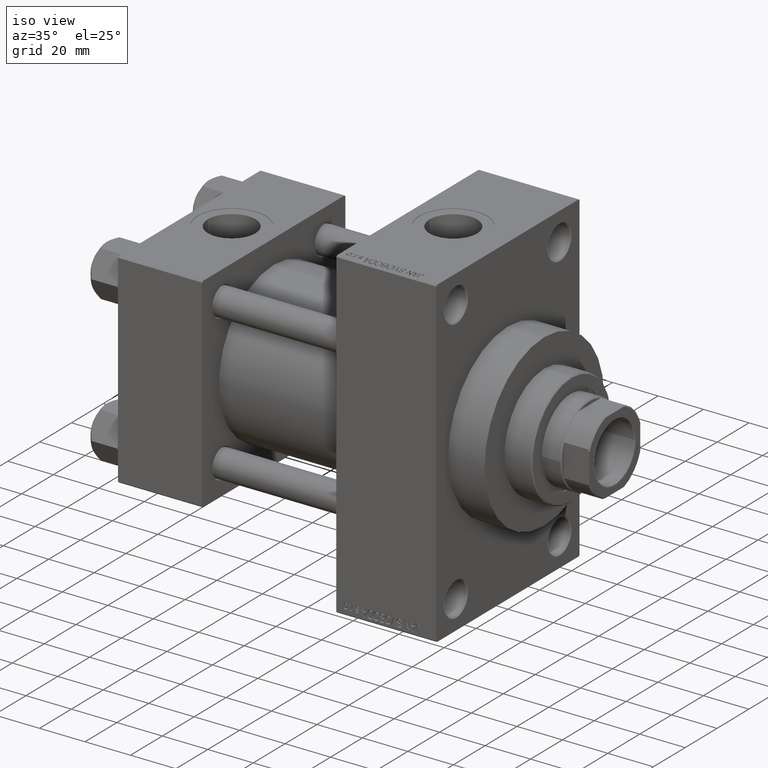
[diagram: clean part render]
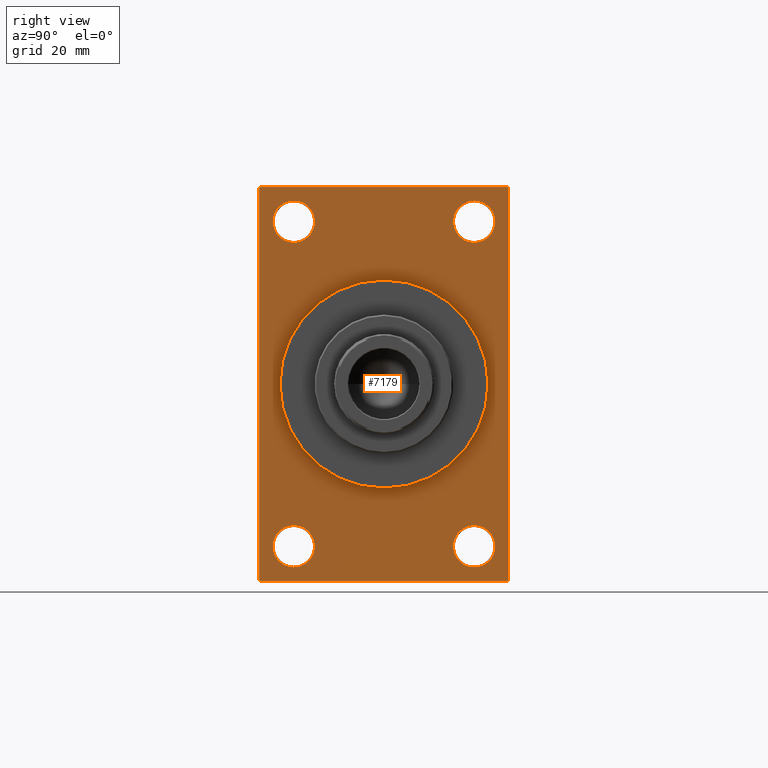
[diagram: tour spotlight — one face highlighted and labeled with its STEP entity id]
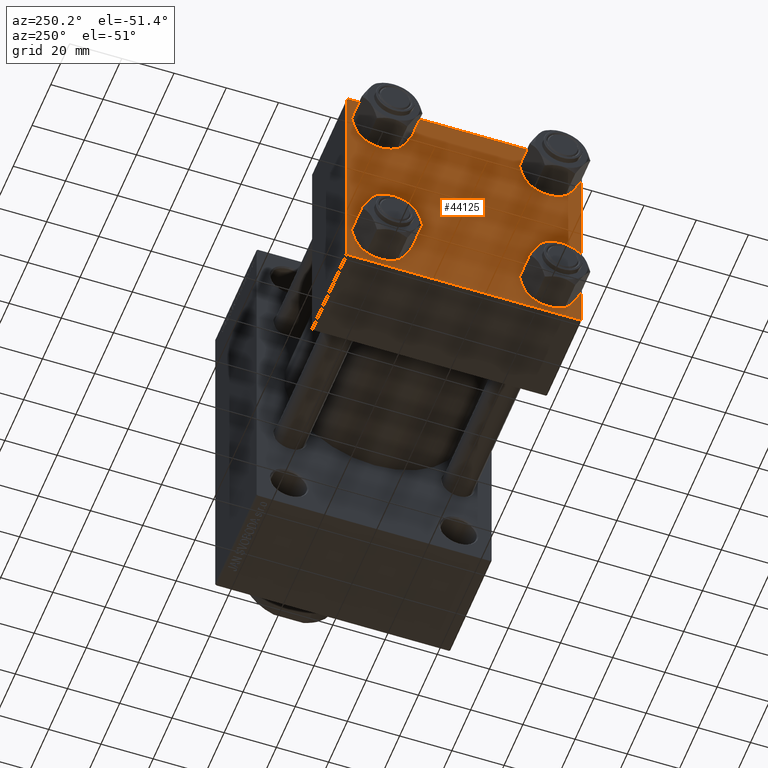
[diagram: tour spotlight — one face highlighted and labeled with its STEP entity id]
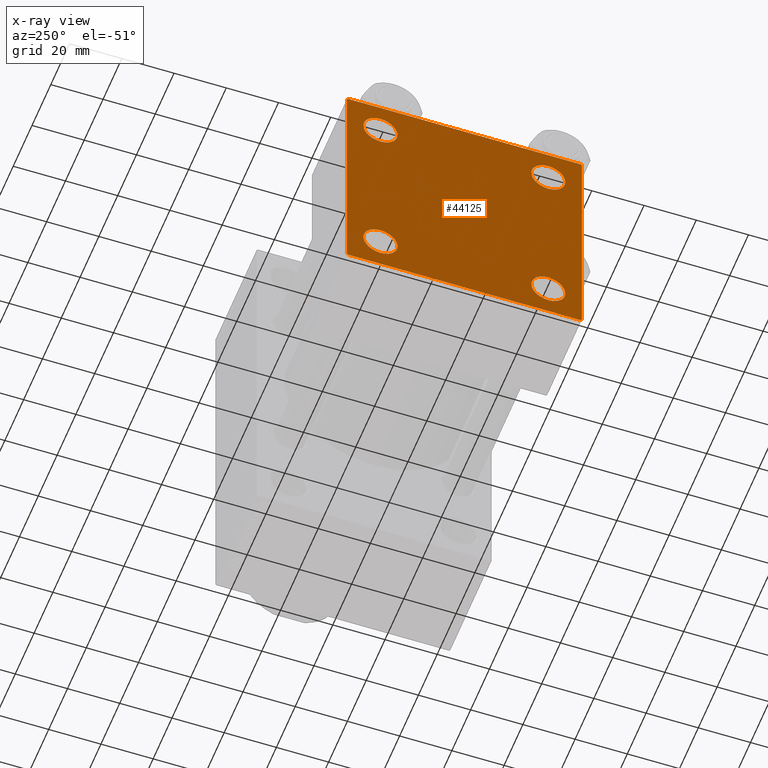
[diagram: x-ray of the same camera — body ghosted, this tour face saturated]
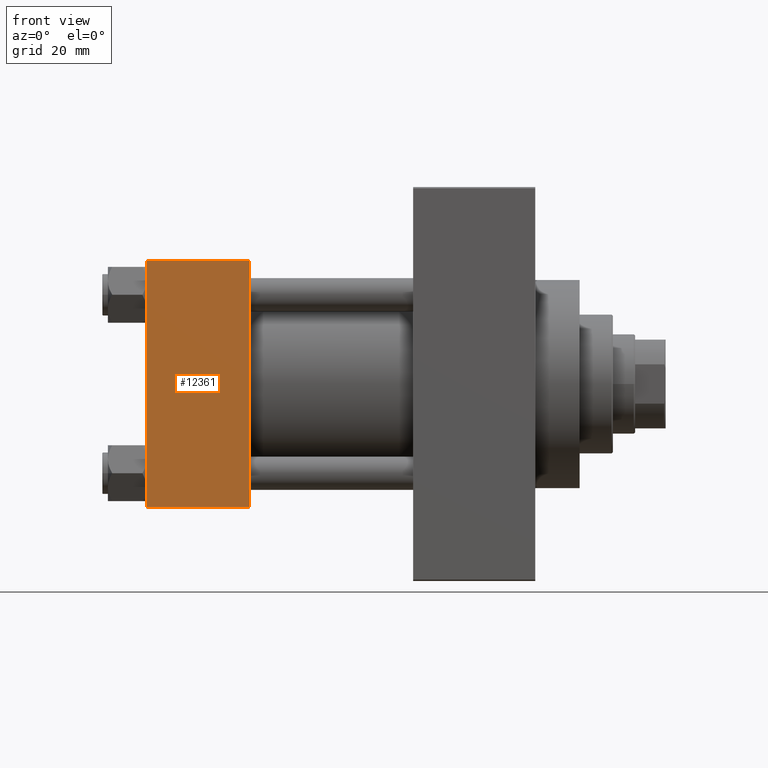
[diagram: tour spotlight — one face highlighted and labeled with its STEP entity id]
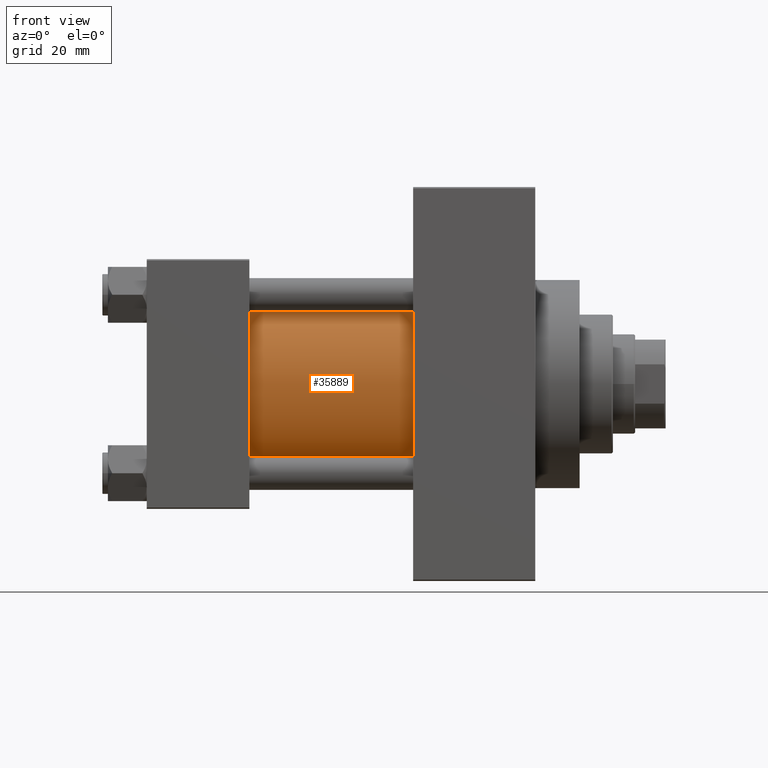
[diagram: tour spotlight — one face highlighted and labeled with its STEP entity id]
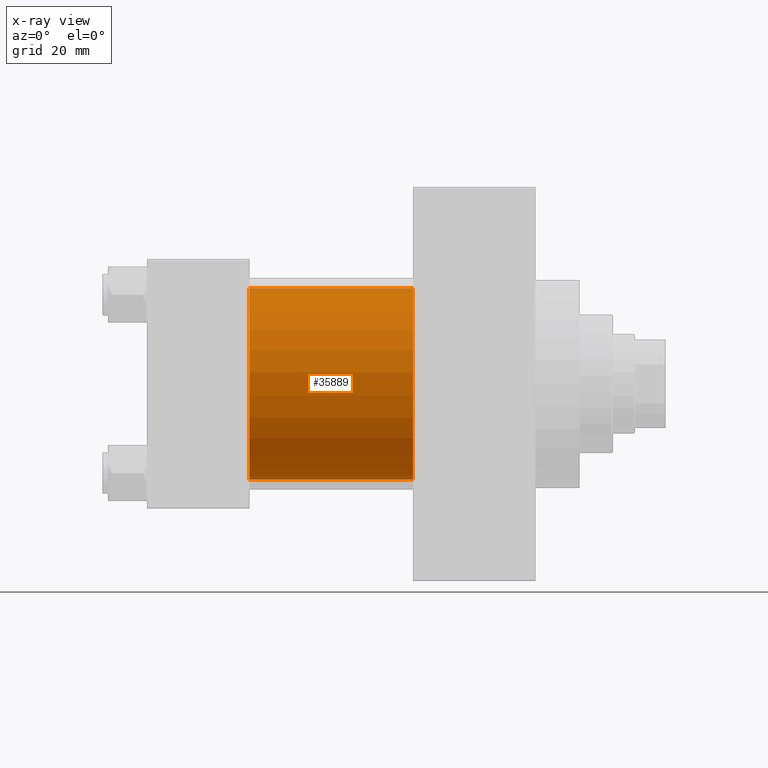
[diagram: x-ray of the same camera — body ghosted, this tour face saturated]
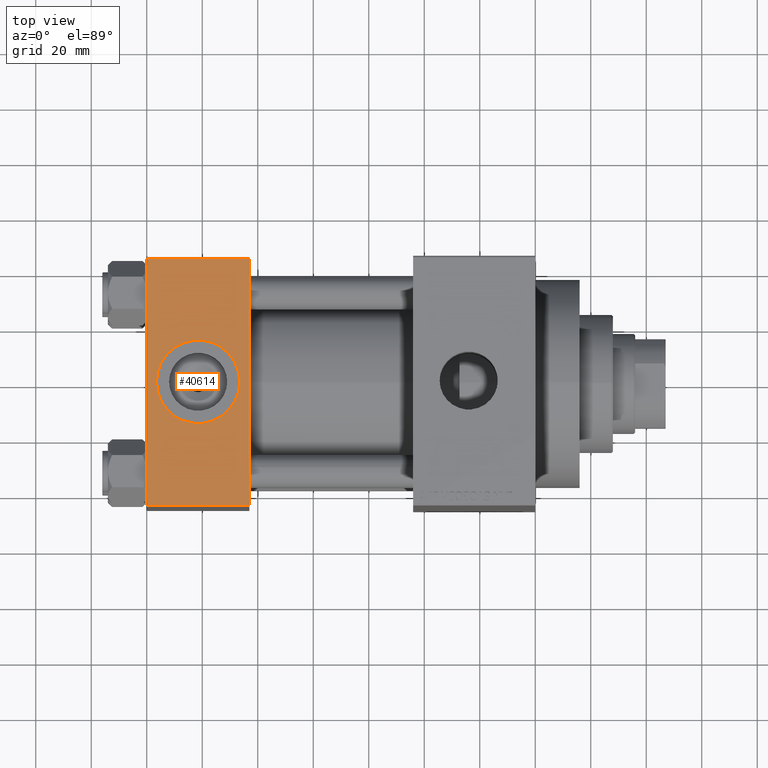
[diagram: tour spotlight — one face highlighted and labeled with its STEP entity id]
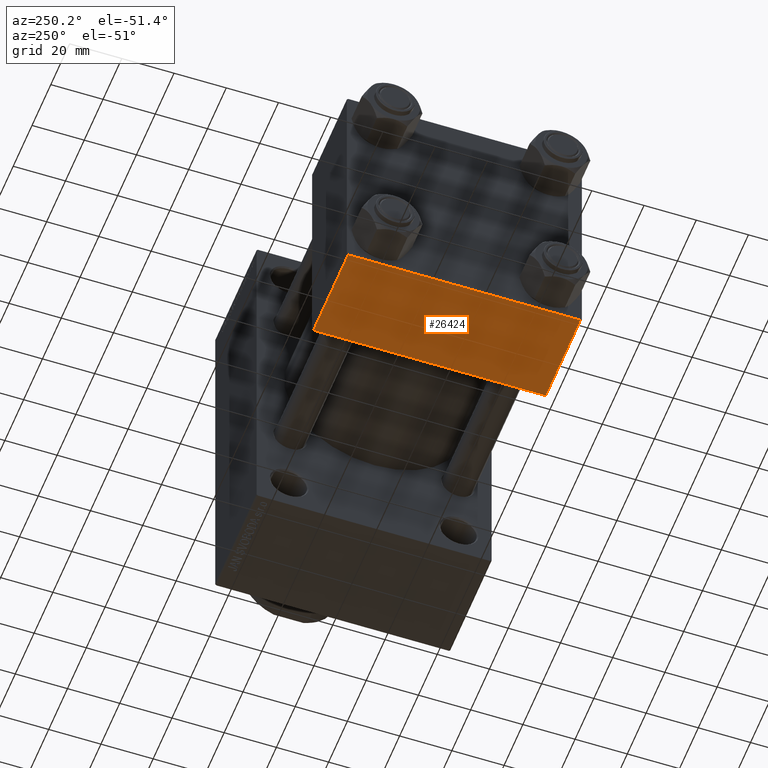
[diagram: tour spotlight — one face highlighted and labeled with its STEP entity id]
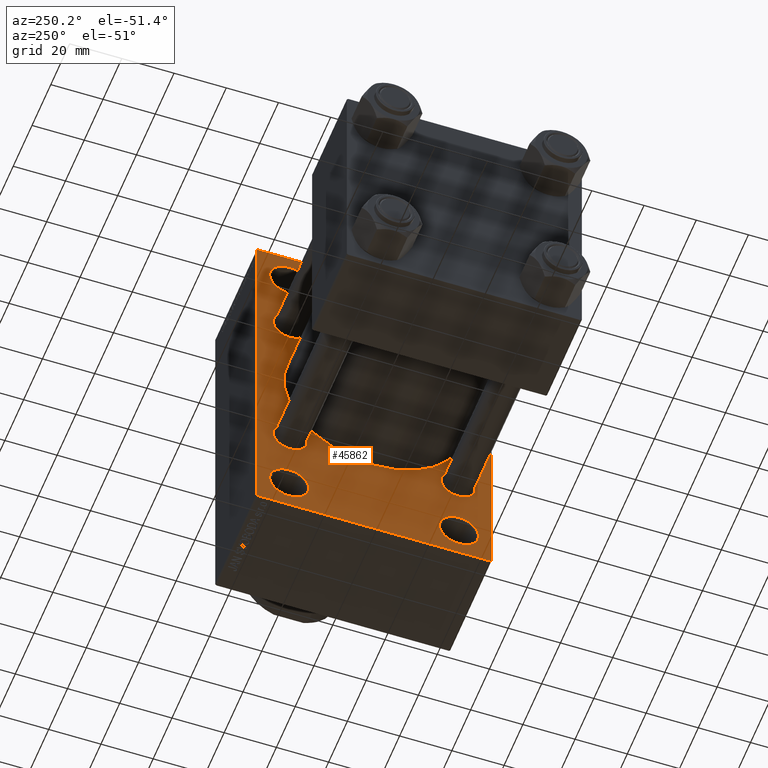
[diagram: tour spotlight — one face highlighted and labeled with its STEP entity id]
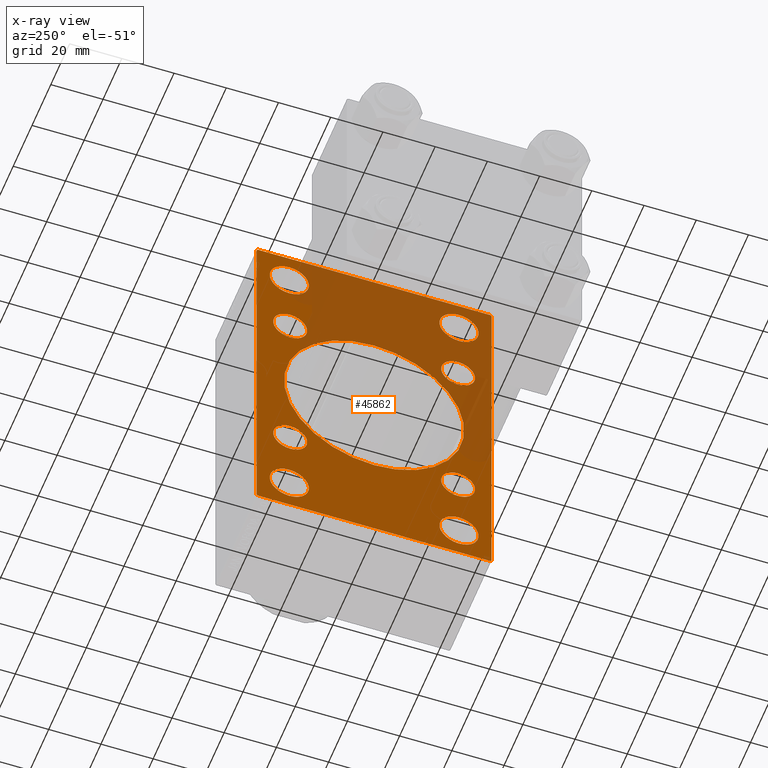
[diagram: x-ray of the same camera — body ghosted, this tour face saturated]
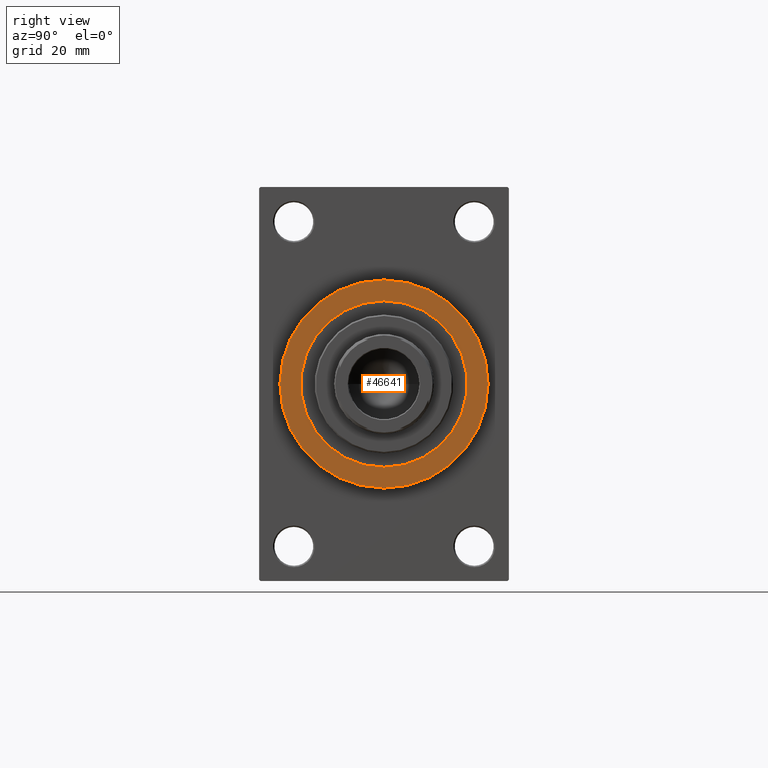
[diagram: tour spotlight — one face highlighted and labeled with its STEP entity id]
A machine part: a face-by-face anatomy tour. The part has 1103 B-rep faces; the first image is the clean iso view, then the 8 largest visible faces are spotlighted one at a time (largest first), each with its STEP entity span.

Face 1 — right view, entity #7179. In plain terms, the highlighted planar face has unit normal (-1, 0, 0).
Definition (entity closure, byte-faithful):
#150 = AXIS2_PLACEMENT_3D ( 'NONE', #31785, #9809, #24403 ) ;
#200 = DIRECTION ( 'NONE',  ( 0.000000000000000000, 0.000000000000000000, -1.000000000000000000 ) ) ;
#504 = EDGE_CURVE ( 'NONE', #42250, #14946, #43562, .T. ) ;
#590 = DIRECTION ( 'NONE',  ( 0.000000000000000000, 0.000000000000000000, -1.000000000000000000 ) ) ;
#1022 = DIRECTION ( 'NONE',  ( 0.000000000000000000, 0.000000000000000000, 1.000000000000000000 ) ) ;
#2014 = CARTESIAN_POINT ( 'NONE',  ( 140.0000000000000000, -32.50000000000000000, -66.00000000000001421 ) ) ;
#2403 = VECTOR ( 'NONE', #12696, 1000.000000000000000 ) ;
#2752 = FACE_BOUND ( 'NONE', #17163, .T. ) ;
#2886 = AXIS2_PLACEMENT_3D ( 'NONE', #33824, #14961, #19021 ) ;
#2984 = AXIS2_PLACEMENT_3D ( 'NONE', #11325, #25898, #590 ) ;
#3574 = CARTESIAN_POINT ( 'NONE',  ( 140.0000000000000000, -32.50000000000000000, 58.50000000000000711 ) ) ;
#4640 = ORIENTED_EDGE ( 'NONE', *, *, #32206, .F. ) ;
#5063 = CARTESIAN_POINT ( 'NONE',  ( 140.0000000000000000, -32.50000000000000000, 51.00000000000007105 ) ) ;
#5491 = CIRCLE ( 'NONE', #150, 7.499999999999936939 ) ;
#5513 = VERTEX_POINT ( 'NONE', #5063 ) ;
#5785 = ORIENTED_EDGE ( 'NONE', *, *, #18177, .F. ) ;
#5873 = VECTOR ( 'NONE', #18076, 1000.000000000000000 ) ;
#6562 = VERTEX_POINT ( 'NONE', #28187 ) ;
#6690 = EDGE_CURVE ( 'NONE', #26276, #33516, #23202, .T. ) ;
#6734 = EDGE_CURVE ( 'NONE', #35323, #5513, #41385, .T. ) ;
#6785 = CIRCLE ( 'NONE', #2984, 37.50000000000000711 ) ;
#6861 = CARTESIAN_POINT ( 'NONE',  ( 140.0000000000000000, 45.00000000000001421, -70.50000000000001421 ) ) ;
#7106 = VECTOR ( 'NONE', #30581, 1000.000000000000114 ) ;
#7179 = ADVANCED_FACE ( 'NONE', ( #39055, #46911, #32120, #13268, #2752, #17322 ), #46678, .F. ) ;
#7412 = ORIENTED_EDGE ( 'NONE', *, *, #33374, .T. ) ;
#8343 = CARTESIAN_POINT ( 'NONE',  ( 140.0000000000000000, -32.50000000000000000, -50.99999999999995737 ) ) ;
#8572 = VECTOR ( 'NONE', #200, 1000.000000000000000 ) ;
#9085 = AXIS2_PLACEMENT_3D ( 'NONE', #45186, #23936, #1022 ) ;
#9270 = CARTESIAN_POINT ( 'NONE',  ( 140.0000000000000000, -32.50000000000000000, -58.49999999999999289 ) ) ;
#9435 = EDGE_LOOP ( 'NONE', ( #41991, #31627, #39364, #39933, #5785, #15602, #46094, #15743 ) ) ;
#9521 = ORIENTED_EDGE ( 'NONE', *, *, #20692, .T. ) ;
#9594 = EDGE_CURVE ( 'NONE', #30955, #43841, #19616, .T. ) ;
#9809 = DIRECTION ( 'NONE',  ( -1.000000000000000000, 0.000000000000000000, -0.000000000000000000 ) ) ;
#10556 = VERTEX_POINT ( 'NONE', #19563 ) ;
#10687 = CARTESIAN_POINT ( 'NONE',  ( 140.0000000000000000, -44.99999999999997158, 70.49999999999998579 ) ) ;
#10968 = AXIS2_PLACEMENT_3D ( 'NONE', #31885, #14203, #46451 ) ;
#10975 = DIRECTION ( 'NONE',  ( 0.000000000000000000, 0.000000000000000000, 1.000000000000000000 ) ) ;
#11203 = EDGE_CURVE ( 'NONE', #26493, #22361, #46830, .T. ) ;
#11325 = CARTESIAN_POINT ( 'NONE',  ( 140.0000000000000000, 0.000000000000000000, 0.000000000000000000 ) ) ;
#11661 = EDGE_LOOP ( 'NONE', ( #27119, #9521 ) ) ;
#12231 = VERTEX_POINT ( 'NONE', #31089 ) ;
#12696 = DIRECTION ( 'NONE',  ( 0.000000000000000000, -1.000000000000000000, -1.541976423090495387E-16 ) ) ;
#13268 = FACE_BOUND ( 'NONE', #11661, .T. ) ;
#13706 = DIRECTION ( 'NONE',  ( -0.000000000000000000, 0.7071067811865574537, 0.7071067811865376918 ) ) ;
#13746 = CARTESIAN_POINT ( 'NONE',  ( 140.0000000000000000, 4.592425496802575156E-15, -37.50000000000000711 ) ) ;
#14203 = DIRECTION ( 'NONE',  ( -1.000000000000000000, 0.000000000000000000, -0.000000000000000000 ) ) ;
#14515 = LINE ( 'NONE', #17879, #8572 ) ;
#14621 = ORIENTED_EDGE ( 'NONE', *, *, #11203, .T. ) ;
#14759 = DIRECTION ( 'NONE',  ( -0.000000000000000000, -0.7071067811865426878, -0.7071067811865524577 ) ) ;
#14946 = VERTEX_POINT ( 'NONE', #13746 ) ;
#14961 = DIRECTION ( 'NONE',  ( -1.000000000000000000, 0.000000000000000000, -0.000000000000000000 ) ) ;
#15253 = EDGE_CURVE ( 'NONE', #30236, #6562, #31612, .T. ) ;
#15426 = DIRECTION ( 'NONE',  ( -1.000000000000000000, 0.000000000000000000, -0.000000000000000000 ) ) ;
#15602 = ORIENTED_EDGE ( 'NONE', *, *, #9594, .T. ) ;
#15743 = ORIENTED_EDGE ( 'NONE', *, *, #36470, .T. ) ;
#15980 = AXIS2_PLACEMENT_3D ( 'NONE', #3574, #28434, #10975 ) ;
#16023 = CARTESIAN_POINT ( 'NONE',  ( 140.0000000000000000, 44.50000000000002132, 71.00000000000000000 ) ) ;
#16611 = EDGE_LOOP ( 'NONE', ( #27932, #31947 ) ) ;
#17163 = EDGE_LOOP ( 'NONE', ( #23928, #4640 ) ) ;
#17192 = DIRECTION ( 'NONE',  ( 0.000000000000000000, 0.000000000000000000, -1.000000000000000000 ) ) ;
#17296 = CARTESIAN_POINT ( 'NONE',  ( 140.0000000000000000, 45.00000000000001421, -70.50000000000001421 ) ) ;
#17322 = FACE_OUTER_BOUND ( 'NONE', #9435, .T. ) ;
#17879 = CARTESIAN_POINT ( 'NONE',  ( 140.0000000000000000, -44.99999999999997158, 70.99999999999998579 ) ) ;
#17973 = ORIENTED_EDGE ( 'NONE', *, *, #6734, .T. ) ;
#18076 = DIRECTION ( 'NONE',  ( 0.000000000000000000, -4.886545002751570165E-17, -1.000000000000000000 ) ) ;
#18177 = EDGE_CURVE ( 'NONE', #30955, #33684, #24786, .T. ) ;
#18224 = DIRECTION ( 'NONE',  ( 0.000000000000000000, 0.000000000000000000, 1.000000000000000000 ) ) ;
#19021 = DIRECTION ( 'NONE',  ( 0.000000000000000000, 0.000000000000000000, 1.000000000000000000 ) ) ;
#19126 = EDGE_LOOP ( 'NONE', ( #7412, #17973 ) ) ;
#19161 = CARTESIAN_POINT ( 'NONE',  ( 140.0000000000000000, 45.00000000000001421, -70.99999999999998579 ) ) ;
#19563 = CARTESIAN_POINT ( 'NONE',  ( 140.0000000000000000, 32.50000000000000711, 51.00000000000007105 ) ) ;
#19616 = LINE ( 'NONE', #16023, #7106 ) ;
#19803 = VECTOR ( 'NONE', #14759, 1000.000000000000000 ) ;
#20039 = DIRECTION ( 'NONE',  ( 0.000000000000000000, 0.000000000000000000, 1.000000000000000000 ) ) ;
#20692 = EDGE_CURVE ( 'NONE', #31113, #10556, #44062, .T. ) ;
#20724 = EDGE_CURVE ( 'NONE', #33516, #26276, #21199, .T. ) ;
#21199 = CIRCLE ( 'NONE', #27293, 7.500000000000041744 ) ;
#21644 = AXIS2_PLACEMENT_3D ( 'NONE', #23387, #26712, #20039 ) ;
#22361 = VERTEX_POINT ( 'NONE', #23606 ) ;
#22374 = DIRECTION ( 'NONE',  ( 0.000000000000000000, 0.000000000000000000, 1.000000000000000000 ) ) ;
#22987 = DIRECTION ( 'NONE',  ( 0.000000000000000000, -1.000000000000000000, -1.541976423090495633E-16 ) ) ;
#23084 = AXIS2_PLACEMENT_3D ( 'NONE', #9270, #23623, #38179 ) ;
#23202 = CIRCLE ( 'NONE', #23084, 7.500000000000041744 ) ;
#23387 = CARTESIAN_POINT ( 'NONE',  ( 140.0000000000000000, -32.50000000000000000, 58.50000000000000711 ) ) ;
#23606 = CARTESIAN_POINT ( 'NONE',  ( 140.0000000000000000, 32.50000000000000711, -50.99999999999996447 ) ) ;
#23623 = DIRECTION ( 'NONE',  ( -1.000000000000000000, 0.000000000000000000, -0.000000000000000000 ) ) ;
#23747 = AXIS2_PLACEMENT_3D ( 'NONE', #42742, #39852, #17192 ) ;
#23928 = ORIENTED_EDGE ( 'NONE', *, *, #504, .F. ) ;
#23936 = DIRECTION ( 'NONE',  ( -1.000000000000000000, 0.000000000000000000, -0.000000000000000000 ) ) ;
#24375 = CIRCLE ( 'NONE', #9085, 7.500000000000034639 ) ;
#24397 = LINE ( 'NONE', #27490, #2403 ) ;
#24403 = DIRECTION ( 'NONE',  ( 0.000000000000000000, 0.000000000000000000, 1.000000000000000000 ) ) ;
#24786 = LINE ( 'NONE', #36461, #5873 ) ;
#24921 = DIRECTION ( 'NONE',  ( -1.000000000000000000, 0.000000000000000000, -0.000000000000000000 ) ) ;
#24974 = CARTESIAN_POINT ( 'NONE',  ( 140.0000000000000000, -32.50000000000000000, 65.99999999999994316 ) ) ;
#25898 = DIRECTION ( 'NONE',  ( 1.000000000000000000, 0.000000000000000000, 0.000000000000000000 ) ) ;
#26276 = VERTEX_POINT ( 'NONE', #2014 ) ;
#26493 = VERTEX_POINT ( 'NONE', #29679 ) ;
#26712 = DIRECTION ( 'NONE',  ( -1.000000000000000000, 0.000000000000000000, -0.000000000000000000 ) ) ;
#27119 = ORIENTED_EDGE ( 'NONE', *, *, #42873, .T. ) ;
#27293 = AXIS2_PLACEMENT_3D ( 'NONE', #40515, #15426, #22374 ) ;
#27490 = CARTESIAN_POINT ( 'NONE',  ( 140.0000000000000000, 45.00000000000002132, 71.00000000000000000 ) ) ;
#27616 = VECTOR ( 'NONE', #22987, 1000.000000000000000 ) ;
#27820 = ORIENTED_EDGE ( 'NONE', *, *, #35760, .T. ) ;
#27932 = ORIENTED_EDGE ( 'NONE', *, *, #6690, .T. ) ;
#28187 = CARTESIAN_POINT ( 'NONE',  ( 140.0000000000000000, -44.49999999999994316, -71.00000000000000000 ) ) ;
#28434 = DIRECTION ( 'NONE',  ( -1.000000000000000000, 0.000000000000000000, -0.000000000000000000 ) ) ;
#29679 = CARTESIAN_POINT ( 'NONE',  ( 140.0000000000000000, 32.50000000000000711, -66.00000000000002842 ) ) ;
#29964 = CARTESIAN_POINT ( 'NONE',  ( 140.0000000000000000, 44.50000000000002132, 71.00000000000000000 ) ) ;
#30236 = VERTEX_POINT ( 'NONE', #39555 ) ;
#30581 = DIRECTION ( 'NONE',  ( 0.000000000000000000, -0.7071067811865474617, 0.7071067811865474617 ) ) ;
#30785 = CARTESIAN_POINT ( 'NONE',  ( 140.0000000000000000, 0.000000000000000000, 37.50000000000000711 ) ) ;
#30955 = VERTEX_POINT ( 'NONE', #44397 ) ;
#31089 = CARTESIAN_POINT ( 'NONE',  ( 140.0000000000000000, 44.50000000000004263, -70.99999999999998579 ) ) ;
#31113 = VERTEX_POINT ( 'NONE', #41992 ) ;
#31598 = AXIS2_PLACEMENT_3D ( 'NONE', #39258, #24921, #18224 ) ;
#31612 = LINE ( 'NONE', #31843, #33234 ) ;
#31627 = ORIENTED_EDGE ( 'NONE', *, *, #15253, .T. ) ;
#31785 = CARTESIAN_POINT ( 'NONE',  ( 140.0000000000000000, 32.50000000000000711, 58.50000000000000711 ) ) ;
#31843 = CARTESIAN_POINT ( 'NONE',  ( 140.0000000000000000, -44.49999999999997158, -71.00000000000000000 ) ) ;
#31885 = CARTESIAN_POINT ( 'NONE',  ( 140.0000000000000000, 0.000000000000000000, 0.000000000000000000 ) ) ;
#31947 = ORIENTED_EDGE ( 'NONE', *, *, #20724, .T. ) ;
#32120 = FACE_BOUND ( 'NONE', #40534, .T. ) ;
#32206 = EDGE_CURVE ( 'NONE', #14946, #42250, #6785, .T. ) ;
#32211 = LINE ( 'NONE', #10687, #19803 ) ;
#33234 = VECTOR ( 'NONE', #46179, 1000.000000000000000 ) ;
#33374 = EDGE_CURVE ( 'NONE', #5513, #35323, #45737, .T. ) ;
#33516 = VERTEX_POINT ( 'NONE', #8343 ) ;
#33684 = VERTEX_POINT ( 'NONE', #6861 ) ;
#33824 = CARTESIAN_POINT ( 'NONE',  ( 140.0000000000000000, 32.50000000000000711, 58.50000000000000711 ) ) ;
#35323 = VERTEX_POINT ( 'NONE', #24974 ) ;
#35445 = LINE ( 'NONE', #17296, #39078 ) ;
#35556 = CARTESIAN_POINT ( 'NONE',  ( 140.0000000000000000, -44.49999999999995026, 70.99999999999998579 ) ) ;
#35760 = EDGE_CURVE ( 'NONE', #22361, #26493, #24375, .T. ) ;
#36461 = CARTESIAN_POINT ( 'NONE',  ( 140.0000000000000000, 45.00000000000002132, 71.00000000000000000 ) ) ;
#36470 = EDGE_CURVE ( 'NONE', #37228, #43019, #32211, .T. ) ;
#37228 = VERTEX_POINT ( 'NONE', #35556 ) ;
#38179 = DIRECTION ( 'NONE',  ( 0.000000000000000000, 0.000000000000000000, 1.000000000000000000 ) ) ;
#39055 = FACE_BOUND ( 'NONE', #19126, .T. ) ;
#39078 = VECTOR ( 'NONE', #13706, 999.9999999999998863 ) ;
#39258 = CARTESIAN_POINT ( 'NONE',  ( 140.0000000000000000, 32.50000000000000711, -58.50000000000000000 ) ) ;
#39364 = ORIENTED_EDGE ( 'NONE', *, *, #42716, .F. ) ;
#39555 = CARTESIAN_POINT ( 'NONE',  ( 140.0000000000000000, -44.99999999999997158, -70.50000000000000000 ) ) ;
#39852 = DIRECTION ( 'NONE',  ( 1.000000000000000000, 0.000000000000000000, 0.000000000000000000 ) ) ;
#39933 = ORIENTED_EDGE ( 'NONE', *, *, #46406, .T. ) ;
#40515 = CARTESIAN_POINT ( 'NONE',  ( 140.0000000000000000, -32.50000000000000000, -58.49999999999999289 ) ) ;
#40534 = EDGE_LOOP ( 'NONE', ( #14621, #27820 ) ) ;
#41364 = LINE ( 'NONE', #19161, #27616 ) ;
#41385 = CIRCLE ( 'NONE', #21644, 7.499999999999936939 ) ;
#41851 = EDGE_CURVE ( 'NONE', #43841, #37228, #24397, .T. ) ;
#41991 = ORIENTED_EDGE ( 'NONE', *, *, #43422, .T. ) ;
#41992 = CARTESIAN_POINT ( 'NONE',  ( 140.0000000000000000, 32.50000000000000711, 65.99999999999994316 ) ) ;
#42250 = VERTEX_POINT ( 'NONE', #30785 ) ;
#42716 = EDGE_CURVE ( 'NONE', #12231, #6562, #41364, .T. ) ;
#42742 = CARTESIAN_POINT ( 'NONE',  ( 140.0000000000000000, 0.000000000000000000, 0.000000000000000000 ) ) ;
#42873 = EDGE_CURVE ( 'NONE', #10556, #31113, #5491, .T. ) ;
#43019 = VERTEX_POINT ( 'NONE', #44891 ) ;
#43422 = EDGE_CURVE ( 'NONE', #43019, #30236, #14515, .T. ) ;
#43562 = CIRCLE ( 'NONE', #23747, 37.50000000000000711 ) ;
#43841 = VERTEX_POINT ( 'NONE', #29964 ) ;
#44062 = CIRCLE ( 'NONE', #2886, 7.499999999999936939 ) ;
#44397 = CARTESIAN_POINT ( 'NONE',  ( 140.0000000000000000, 45.00000000000002132, 70.50000000000000000 ) ) ;
#44891 = CARTESIAN_POINT ( 'NONE',  ( 140.0000000000000000, -44.99999999999997158, 70.49999999999998579 ) ) ;
#45186 = CARTESIAN_POINT ( 'NONE',  ( 140.0000000000000000, 32.50000000000000711, -58.50000000000000000 ) ) ;
#45737 = CIRCLE ( 'NONE', #15980, 7.499999999999936939 ) ;
#46094 = ORIENTED_EDGE ( 'NONE', *, *, #41851, .T. ) ;
#46179 = DIRECTION ( 'NONE',  ( 0.000000000000000000, 0.7071067811865573427, -0.7071067811865378028 ) ) ;
#46406 = EDGE_CURVE ( 'NONE', #12231, #33684, #35445, .T. ) ;
#46451 = DIRECTION ( 'NONE',  ( -0.000000000000000000, 0.000000000000000000, 1.000000000000000000 ) ) ;
#46678 = PLANE ( 'NONE',  #10968 ) ;
#46830 = CIRCLE ( 'NONE', #31598, 7.500000000000034639 ) ;
#46911 = FACE_BOUND ( 'NONE', #16611, .T. ) ;

Face 2 — auxiliary view, entity #44125. An x-ray twin of the same camera follows (body ghosted, this face saturated) — the face is partly hidden behind the body. In plain terms, the highlighted planar face has unit normal (-1, 0, 0).
Definition (entity closure, byte-faithful):
#994 = CARTESIAN_POINT ( 'NONE',  ( 0.000000000000000000, -32.14999999999997726, -38.64999999999999147 ) ) ;
#1048 = ORIENTED_EDGE ( 'NONE', *, *, #25677, .T. ) ;
#1900 = EDGE_LOOP ( 'NONE', ( #40273, #2025 ) ) ;
#1904 = CARTESIAN_POINT ( 'NONE',  ( 0.000000000000000000, -44.49999999999995737, 45.00000000000000000 ) ) ;
#2025 = ORIENTED_EDGE ( 'NONE', *, *, #16995, .T. ) ;
#2554 = EDGE_CURVE ( 'NONE', #44327, #45028, #44814, .T. ) ;
#2881 = CARTESIAN_POINT ( 'NONE',  ( 0.000000000000000000, 32.14999999999999147, -32.15000000000000568 ) ) ;
#3634 = VERTEX_POINT ( 'NONE', #4283 ) ;
#3904 = ORIENTED_EDGE ( 'NONE', *, *, #6404, .F. ) ;
#3979 = VECTOR ( 'NONE', #19031, 1000.000000000000114 ) ;
#4002 = CARTESIAN_POINT ( 'NONE',  ( 0.000000000000000000, 44.99999999999998579, 44.50000000000001421 ) ) ;
#4084 = VECTOR ( 'NONE', #13149, 1000.000000000000000 ) ;
#4283 = CARTESIAN_POINT ( 'NONE',  ( 0.000000000000000000, -32.14999999999997726, -25.65000000000003411 ) ) ;
#4412 = CARTESIAN_POINT ( 'NONE',  ( 0.000000000000000000, 32.14999999999999147, -25.65000000000002700 ) ) ;
#4930 = CIRCLE ( 'NONE', #9508, 6.500000000000019540 ) ;
#5006 = DIRECTION ( 'NONE',  ( -1.000000000000000000, 0.000000000000000000, -0.000000000000000000 ) ) ;
#5240 = FACE_BOUND ( 'NONE', #21789, .T. ) ;
#5654 = VERTEX_POINT ( 'NONE', #42750 ) ;
#5664 = CARTESIAN_POINT ( 'NONE',  ( 0.000000000000000000, 32.14999999999999147, 25.65000000000002700 ) ) ;
#6090 = DIRECTION ( 'NONE',  ( 0.000000000000000000, 7.709882115452476934E-17, -1.000000000000000000 ) ) ;
#6404 = EDGE_CURVE ( 'NONE', #44327, #44353, #35115, .T. ) ;
#7391 = DIRECTION ( 'NONE',  ( 0.000000000000000000, -1.000000000000000000, -1.541976423090495633E-16 ) ) ;
#7578 = VECTOR ( 'NONE', #7391, 1000.000000000000000 ) ;
#8340 = VECTOR ( 'NONE', #6090, 1000.000000000000000 ) ;
#9508 = AXIS2_PLACEMENT_3D ( 'NONE', #34333, #12833, #26688 ) ;
#9545 = VERTEX_POINT ( 'NONE', #994 ) ;
#9884 = DIRECTION ( 'NONE',  ( 0.000000000000000000, -0.7071067811865474617, 0.7071067811865474617 ) ) ;
#10106 = CARTESIAN_POINT ( 'NONE',  ( 0.000000000000000000, -32.14999999999997726, 32.15000000000001279 ) ) ;
#10573 = DIRECTION ( 'NONE',  ( 1.000000000000000000, -0.000000000000000000, 0.000000000000000000 ) ) ;
#11938 = DIRECTION ( 'NONE',  ( -0.000000000000000000, 0.000000000000000000, 1.000000000000000000 ) ) ;
#12316 = CIRCLE ( 'NONE', #39017, 6.499999999999977796 ) ;
#12375 = ORIENTED_EDGE ( 'NONE', *, *, #41167, .T. ) ;
#12413 = FACE_BOUND ( 'NONE', #45482, .T. ) ;
#12747 = EDGE_CURVE ( 'NONE', #46305, #46434, #4930, .T. ) ;
#12833 = DIRECTION ( 'NONE',  ( 1.000000000000000000, -0.000000000000000000, 0.000000000000000000 ) ) ;
#13149 = DIRECTION ( 'NONE',  ( 0.000000000000000000, -1.000000000000000000, -1.541976423090495387E-16 ) ) ;
#13481 = ORIENTED_EDGE ( 'NONE', *, *, #28999, .T. ) ;
#13951 = EDGE_LOOP ( 'NONE', ( #37627, #42992 ) ) ;
#14345 = DIRECTION ( 'NONE',  ( 0.000000000000000000, 0.000000000000000000, 1.000000000000000000 ) ) ;
#14415 = CARTESIAN_POINT ( 'NONE',  ( 0.000000000000000000, -44.74999999999998579, -44.74999999999998579 ) ) ;
#14772 = ORIENTED_EDGE ( 'NONE', *, *, #12747, .T. ) ;
#15082 = VECTOR ( 'NONE', #17886, 1000.000000000000000 ) ;
#16142 = CIRCLE ( 'NONE', #37483, 6.499999999999977796 ) ;
#16510 = CARTESIAN_POINT ( 'NONE',  ( 0.000000000000000000, 44.99999999999998579, 45.00000000000001421 ) ) ;
#16995 = EDGE_CURVE ( 'NONE', #46684, #44833, #41685, .T. ) ;
#16996 = AXIS2_PLACEMENT_3D ( 'NONE', #22943, #5006, #11938 ) ;
#17325 = CARTESIAN_POINT ( 'NONE',  ( 0.000000000000000000, -45.00000000000000711, 45.00000000000000000 ) ) ;
#17405 = CARTESIAN_POINT ( 'NONE',  ( 0.000000000000000000, 44.49999999999998579, -44.99999999999998579 ) ) ;
#17886 = DIRECTION ( 'NONE',  ( 0.000000000000000000, 0.000000000000000000, -1.000000000000000000 ) ) ;
#18373 = EDGE_CURVE ( 'NONE', #44833, #46684, #41721, .T. ) ;
#18390 = DIRECTION ( 'NONE',  ( 0.000000000000000000, 0.000000000000000000, 1.000000000000000000 ) ) ;
#18877 = FACE_OUTER_BOUND ( 'NONE', #40834, .T. ) ;
#19031 = DIRECTION ( 'NONE',  ( 0.000000000000000000, 0.7071067811865474617, -0.7071067811865474617 ) ) ;
#19243 = DIRECTION ( 'NONE',  ( -0.000000000000000000, 0.7071067811865425767, 0.7071067811865524577 ) ) ;
#20262 = ORIENTED_EDGE ( 'NONE', *, *, #42049, .T. ) ;
#20417 = ORIENTED_EDGE ( 'NONE', *, *, #35654, .T. ) ;
#20482 = AXIS2_PLACEMENT_3D ( 'NONE', #10106, #10573, #39257 ) ;
#20910 = DIRECTION ( 'NONE',  ( 1.000000000000000000, -0.000000000000000000, 0.000000000000000000 ) ) ;
#21128 = AXIS2_PLACEMENT_3D ( 'NONE', #34761, #20910, #24489 ) ;
#21340 = DIRECTION ( 'NONE',  ( 0.000000000000000000, 0.000000000000000000, 1.000000000000000000 ) ) ;
#21562 = DIRECTION ( 'NONE',  ( 1.000000000000000000, -0.000000000000000000, 0.000000000000000000 ) ) ;
#21789 = EDGE_LOOP ( 'NONE', ( #14772, #1048 ) ) ;
#22620 = CARTESIAN_POINT ( 'NONE',  ( 0.000000000000000000, 44.74999999999999289, 44.74999999999999289 ) ) ;
#22943 = CARTESIAN_POINT ( 'NONE',  ( 0.000000000000000000, 0.000000000000000000, 0.000000000000000000 ) ) ;
#23063 = LINE ( 'NONE', #30452, #26501 ) ;
#23353 = EDGE_CURVE ( 'NONE', #45020, #44353, #23063, .T. ) ;
#24489 = DIRECTION ( 'NONE',  ( 0.000000000000000000, 0.000000000000000000, 1.000000000000000000 ) ) ;
#24584 = CARTESIAN_POINT ( 'NONE',  ( 0.000000000000000000, 44.99999999999998579, 45.00000000000001421 ) ) ;
#24598 = VECTOR ( 'NONE', #9884, 1000.000000000000114 ) ;
#24635 = CARTESIAN_POINT ( 'NONE',  ( 0.000000000000000000, -44.49999999999995737, -45.00000000000000000 ) ) ;
#25198 = ORIENTED_EDGE ( 'NONE', *, *, #23353, .T. ) ;
#25530 = DIRECTION ( 'NONE',  ( 0.000000000000000000, 0.000000000000000000, 1.000000000000000000 ) ) ;
#25677 = EDGE_CURVE ( 'NONE', #46434, #46305, #41072, .T. ) ;
#26465 = CARTESIAN_POINT ( 'NONE',  ( 0.000000000000000000, -32.14999999999997726, -32.15000000000001279 ) ) ;
#26501 = VECTOR ( 'NONE', #19243, 1000.000000000000114 ) ;
#26631 = CIRCLE ( 'NONE', #34279, 6.499999999999977796 ) ;
#26688 = DIRECTION ( 'NONE',  ( 0.000000000000000000, 0.000000000000000000, 1.000000000000000000 ) ) ;
#26979 = PLANE ( 'NONE',  #16996 ) ;
#27679 = CARTESIAN_POINT ( 'NONE',  ( 0.000000000000000000, 32.14999999999999147, 38.64999999999999147 ) ) ;
#27876 = DIRECTION ( 'NONE',  ( 1.000000000000000000, -0.000000000000000000, 0.000000000000000000 ) ) ;
#27957 = VERTEX_POINT ( 'NONE', #24635 ) ;
#28337 = VECTOR ( 'NONE', #46556, 1000.000000000000114 ) ;
#28999 = EDGE_CURVE ( 'NONE', #45028, #41449, #46772, .T. ) ;
#30155 = CARTESIAN_POINT ( 'NONE',  ( 0.000000000000000000, -32.14999999999997726, 25.64999999999999147 ) ) ;
#30257 = CARTESIAN_POINT ( 'NONE',  ( 0.000000000000000000, -45.00000000000000711, 44.49999999999997158 ) ) ;
#30450 = CIRCLE ( 'NONE', #35021, 6.499999999999977796 ) ;
#30452 = CARTESIAN_POINT ( 'NONE',  ( -0.000000000000000000, -44.75000000000029843, 44.74999999999967315 ) ) ;
#31998 = CARTESIAN_POINT ( 'NONE',  ( 0.000000000000000000, 44.74999999999998579, -44.74999999999998579 ) ) ;
#32230 = LINE ( 'NONE', #31998, #28337 ) ;
#32266 = DIRECTION ( 'NONE',  ( 1.000000000000000000, -0.000000000000000000, 0.000000000000000000 ) ) ;
#32717 = LINE ( 'NONE', #39190, #7578 ) ;
#33176 = EDGE_CURVE ( 'NONE', #45020, #5654, #42868, .T. ) ;
#33391 = EDGE_CURVE ( 'NONE', #43388, #27957, #32717, .T. ) ;
#33407 = DIRECTION ( 'NONE',  ( 1.000000000000000000, -0.000000000000000000, 0.000000000000000000 ) ) ;
#34279 = AXIS2_PLACEMENT_3D ( 'NONE', #43478, #32266, #14345 ) ;
#34333 = CARTESIAN_POINT ( 'NONE',  ( 0.000000000000000000, -32.14999999999997726, 32.15000000000001279 ) ) ;
#34382 = FACE_BOUND ( 'NONE', #1900, .T. ) ;
#34761 = CARTESIAN_POINT ( 'NONE',  ( 0.000000000000000000, 32.14999999999999147, 32.15000000000000568 ) ) ;
#35021 = AXIS2_PLACEMENT_3D ( 'NONE', #39254, #21562, #21340 ) ;
#35115 = LINE ( 'NONE', #16510, #4084 ) ;
#35273 = CARTESIAN_POINT ( 'NONE',  ( 0.000000000000000000, 32.14999999999999147, 32.15000000000000568 ) ) ;
#35654 = EDGE_CURVE ( 'NONE', #43861, #39600, #30450, .T. ) ;
#35829 = ORIENTED_EDGE ( 'NONE', *, *, #33391, .T. ) ;
#36220 = EDGE_CURVE ( 'NONE', #3634, #9545, #26631, .T. ) ;
#37265 = FACE_BOUND ( 'NONE', #13951, .T. ) ;
#37483 = AXIS2_PLACEMENT_3D ( 'NONE', #26465, #33407, #25530 ) ;
#37627 = ORIENTED_EDGE ( 'NONE', *, *, #36220, .T. ) ;
#38163 = DIRECTION ( 'NONE',  ( 0.000000000000000000, 0.000000000000000000, 1.000000000000000000 ) ) ;
#38637 = CARTESIAN_POINT ( 'NONE',  ( 0.000000000000000000, 44.99999999999998579, -44.49999999999995737 ) ) ;
#39017 = AXIS2_PLACEMENT_3D ( 'NONE', #2881, #39648, #18390 ) ;
#39190 = CARTESIAN_POINT ( 'NONE',  ( 0.000000000000000000, 44.99999999999998579, -44.99999999999998579 ) ) ;
#39254 = CARTESIAN_POINT ( 'NONE',  ( 0.000000000000000000, 32.14999999999999147, -32.15000000000000568 ) ) ;
#39257 = DIRECTION ( 'NONE',  ( 0.000000000000000000, 0.000000000000000000, 1.000000000000000000 ) ) ;
#39405 = ORIENTED_EDGE ( 'NONE', *, *, #46376, .T. ) ;
#39600 = VERTEX_POINT ( 'NONE', #42613 ) ;
#39648 = DIRECTION ( 'NONE',  ( 1.000000000000000000, -0.000000000000000000, 0.000000000000000000 ) ) ;
#40273 = ORIENTED_EDGE ( 'NONE', *, *, #18373, .T. ) ;
#40834 = EDGE_LOOP ( 'NONE', ( #13481, #12375, #35829, #39405, #47148, #25198, #3904, #43939 ) ) ;
#41072 = CIRCLE ( 'NONE', #20482, 6.500000000000019540 ) ;
#41167 = EDGE_CURVE ( 'NONE', #41449, #43388, #32230, .T. ) ;
#41218 = EDGE_CURVE ( 'NONE', #9545, #3634, #16142, .T. ) ;
#41449 = VERTEX_POINT ( 'NONE', #38637 ) ;
#41685 = CIRCLE ( 'NONE', #43217, 6.499999999999977796 ) ;
#41721 = CIRCLE ( 'NONE', #21128, 6.499999999999977796 ) ;
#42049 = EDGE_CURVE ( 'NONE', #39600, #43861, #12316, .T. ) ;
#42613 = CARTESIAN_POINT ( 'NONE',  ( 0.000000000000000000, 32.14999999999999147, -38.64999999999998437 ) ) ;
#42616 = LINE ( 'NONE', #14415, #24598 ) ;
#42750 = CARTESIAN_POINT ( 'NONE',  ( 0.000000000000000000, -45.00000000000000000, -44.49999999999995737 ) ) ;
#42868 = LINE ( 'NONE', #17325, #8340 ) ;
#42992 = ORIENTED_EDGE ( 'NONE', *, *, #41218, .T. ) ;
#43217 = AXIS2_PLACEMENT_3D ( 'NONE', #35273, #27876, #38163 ) ;
#43388 = VERTEX_POINT ( 'NONE', #17405 ) ;
#43478 = CARTESIAN_POINT ( 'NONE',  ( 0.000000000000000000, -32.14999999999997726, -32.15000000000001279 ) ) ;
#43861 = VERTEX_POINT ( 'NONE', #4412 ) ;
#43939 = ORIENTED_EDGE ( 'NONE', *, *, #2554, .T. ) ;
#44125 = ADVANCED_FACE ( 'NONE', ( #5240, #37265, #12413, #34382, #18877 ), #26979, .T. ) ;
#44327 = VERTEX_POINT ( 'NONE', #46075 ) ;
#44353 = VERTEX_POINT ( 'NONE', #1904 ) ;
#44814 = LINE ( 'NONE', #22620, #3979 ) ;
#44833 = VERTEX_POINT ( 'NONE', #27679 ) ;
#45020 = VERTEX_POINT ( 'NONE', #30257 ) ;
#45028 = VERTEX_POINT ( 'NONE', #4002 ) ;
#45482 = EDGE_LOOP ( 'NONE', ( #20417, #20262 ) ) ;
#46075 = CARTESIAN_POINT ( 'NONE',  ( 0.000000000000000000, 44.49999999999998579, 45.00000000000001421 ) ) ;
#46305 = VERTEX_POINT ( 'NONE', #46657 ) ;
#46376 = EDGE_CURVE ( 'NONE', #27957, #5654, #42616, .T. ) ;
#46434 = VERTEX_POINT ( 'NONE', #30155 ) ;
#46556 = DIRECTION ( 'NONE',  ( -0.000000000000000000, -0.7071067811865474617, -0.7071067811865474617 ) ) ;
#46657 = CARTESIAN_POINT ( 'NONE',  ( 0.000000000000000000, -32.14999999999997726, 38.65000000000003411 ) ) ;
#46684 = VERTEX_POINT ( 'NONE', #5664 ) ;
#46772 = LINE ( 'NONE', #24584, #15082 ) ;
#47148 = ORIENTED_EDGE ( 'NONE', *, *, #33176, .F. ) ;

Face 3 — front view, entity #12361. In plain terms, the highlighted planar face has unit normal (0, 1, 0).
Definition (entity closure, byte-faithful):
#979 = CARTESIAN_POINT ( 'NONE',  ( 37.00000000000000000, -45.00000000000000711, 45.00000000000000000 ) ) ;
#2537 = LINE ( 'NONE', #39540, #8296 ) ;
#5654 = VERTEX_POINT ( 'NONE', #42750 ) ;
#6090 = DIRECTION ( 'NONE',  ( 0.000000000000000000, 7.709882115452476934E-17, -1.000000000000000000 ) ) ;
#6418 = EDGE_CURVE ( 'NONE', #30768, #19067, #42287, .T. ) ;
#6467 = DIRECTION ( 'NONE',  ( 1.000000000000000000, 0.000000000000000000, 0.000000000000000000 ) ) ;
#8296 = VECTOR ( 'NONE', #28081, 1000.000000000000000 ) ;
#8340 = VECTOR ( 'NONE', #6090, 1000.000000000000000 ) ;
#11715 = DIRECTION ( 'NONE',  ( -0.000000000000000000, 1.000000000000000000, 7.709882115452478166E-17 ) ) ;
#12361 = ADVANCED_FACE ( 'NONE', ( #18887 ), #43966, .F. ) ;
#14897 = EDGE_LOOP ( 'NONE', ( #35992, #38050, #38017, #44706 ) ) ;
#15371 = DIRECTION ( 'NONE',  ( 0.000000000000000000, 7.709882115452476934E-17, -1.000000000000000000 ) ) ;
#17325 = CARTESIAN_POINT ( 'NONE',  ( 0.000000000000000000, -45.00000000000000711, 45.00000000000000000 ) ) ;
#18887 = FACE_OUTER_BOUND ( 'NONE', #14897, .T. ) ;
#19067 = VERTEX_POINT ( 'NONE', #42527 ) ;
#23169 = VECTOR ( 'NONE', #15371, 1000.000000000000000 ) ;
#24602 = VECTOR ( 'NONE', #6467, 1000.000000000000000 ) ;
#27945 = CARTESIAN_POINT ( 'NONE',  ( 37.00000000000000000, -45.00000000000000711, 45.00000000000000000 ) ) ;
#28081 = DIRECTION ( 'NONE',  ( -1.000000000000000000, 0.000000000000000000, 0.000000000000000000 ) ) ;
#30257 = CARTESIAN_POINT ( 'NONE',  ( 0.000000000000000000, -45.00000000000000711, 44.49999999999997158 ) ) ;
#30584 = CARTESIAN_POINT ( 'NONE',  ( 37.00000000000000000, -45.00000000000000711, 44.49999999999997158 ) ) ;
#30768 = VERTEX_POINT ( 'NONE', #30584 ) ;
#33176 = EDGE_CURVE ( 'NONE', #45020, #5654, #42868, .T. ) ;
#33456 = DIRECTION ( 'NONE',  ( 0.000000000000000000, -7.709882115452478166E-17, 1.000000000000000000 ) ) ;
#35219 = EDGE_CURVE ( 'NONE', #30768, #45020, #2537, .T. ) ;
#35992 = ORIENTED_EDGE ( 'NONE', *, *, #33176, .T. ) ;
#38017 = ORIENTED_EDGE ( 'NONE', *, *, #6418, .F. ) ;
#38050 = ORIENTED_EDGE ( 'NONE', *, *, #43950, .T. ) ;
#38966 = LINE ( 'NONE', #42780, #24602 ) ;
#39540 = CARTESIAN_POINT ( 'NONE',  ( 37.00000000000000000, -45.00000000000000711, 44.49999999999997158 ) ) ;
#42287 = LINE ( 'NONE', #27945, #23169 ) ;
#42527 = CARTESIAN_POINT ( 'NONE',  ( 37.00000000000000000, -45.00000000000000000, -44.49999999999995737 ) ) ;
#42750 = CARTESIAN_POINT ( 'NONE',  ( 0.000000000000000000, -45.00000000000000000, -44.49999999999995737 ) ) ;
#42780 = CARTESIAN_POINT ( 'NONE',  ( 37.00000000000000000, -45.00000000000000000, -44.49999999999998579 ) ) ;
#42868 = LINE ( 'NONE', #17325, #8340 ) ;
#43051 = AXIS2_PLACEMENT_3D ( 'NONE', #979, #11715, #33456 ) ;
#43950 = EDGE_CURVE ( 'NONE', #5654, #19067, #38966, .T. ) ;
#43966 = PLANE ( 'NONE',  #43051 ) ;
#44706 = ORIENTED_EDGE ( 'NONE', *, *, #35219, .T. ) ;
#45020 = VERTEX_POINT ( 'NONE', #30257 ) ;

Face 4 — front view, entity #35889. An x-ray twin of the same camera follows (body ghosted, this face saturated) — the face is partly hidden behind the body. In plain terms, the highlighted cylindrical surface (partial cylindrical patch) has radius 34.5 mm, axis along (-1, -0, -0).
Definition (entity closure, byte-faithful):
#486 = ORIENTED_EDGE ( 'NONE', *, *, #620, .F. ) ;
#620 = EDGE_CURVE ( 'NONE', #26067, #26463, #44313, .T. ) ;
#4254 = DIRECTION ( 'NONE',  ( 1.000000000000000000, 0.000000000000000000, 0.000000000000000000 ) ) ;
#6584 = CARTESIAN_POINT ( 'NONE',  ( 96.00000000000000000, -2.602085213965210642E-15, 34.50000000000000000 ) ) ;
#8724 = EDGE_CURVE ( 'NONE', #26463, #19089, #24770, .T. ) ;
#8957 = VERTEX_POINT ( 'NONE', #39503 ) ;
#9062 = CARTESIAN_POINT ( 'NONE',  ( 96.00000000000000000, -2.602085213965210642E-15, 34.50000000000000000 ) ) ;
#10344 = CARTESIAN_POINT ( 'NONE',  ( 96.00000000000000000, 1.622946243093158675E-15, -34.50000000000000000 ) ) ;
#10515 = FACE_OUTER_BOUND ( 'NONE', #38647, .T. ) ;
#13709 = AXIS2_PLACEMENT_3D ( 'NONE', #21704, #47236, #18589 ) ;
#14131 = ORIENTED_EDGE ( 'NONE', *, *, #8724, .F. ) ;
#14947 = CARTESIAN_POINT ( 'NONE',  ( 96.00000000000000000, 1.622946243093158675E-15, -34.50000000000000000 ) ) ;
#18589 = DIRECTION ( 'NONE',  ( 0.000000000000000000, 0.000000000000000000, 1.000000000000000000 ) ) ;
#19089 = VERTEX_POINT ( 'NONE', #42760 ) ;
#21052 = CYLINDRICAL_SURFACE ( 'NONE', #21290, 34.50000000000000000 ) ;
#21290 = AXIS2_PLACEMENT_3D ( 'NONE', #42779, #38495, #42307 ) ;
#21704 = CARTESIAN_POINT ( 'NONE',  ( 37.00000000000000000, -2.602085213965210642E-15, 0.000000000000000000 ) ) ;
#23655 = CIRCLE ( 'NONE', #13709, 34.50000000000000000 ) ;
#24109 = ORIENTED_EDGE ( 'NONE', *, *, #37388, .T. ) ;
#24770 = LINE ( 'NONE', #14947, #26132 ) ;
#24995 = DIRECTION ( 'NONE',  ( -1.000000000000000000, -0.000000000000000000, -0.000000000000000000 ) ) ;
#26067 = VERTEX_POINT ( 'NONE', #6584 ) ;
#26132 = VECTOR ( 'NONE', #24995, 1000.000000000000000 ) ;
#26463 = VERTEX_POINT ( 'NONE', #10344 ) ;
#29574 = CARTESIAN_POINT ( 'NONE',  ( 96.00000000000000000, -2.602085213965210642E-15, 0.000000000000000000 ) ) ;
#35889 = ADVANCED_FACE ( 'NONE', ( #10515 ), #21052, .T. ) ;
#35924 = AXIS2_PLACEMENT_3D ( 'NONE', #29574, #4254, #44384 ) ;
#36404 = EDGE_CURVE ( 'NONE', #26067, #8957, #41784, .T. ) ;
#37388 = EDGE_CURVE ( 'NONE', #8957, #19089, #23655, .T. ) ;
#38495 = DIRECTION ( 'NONE',  ( -1.000000000000000000, -0.000000000000000000, -0.000000000000000000 ) ) ;
#38647 = EDGE_LOOP ( 'NONE', ( #14131, #486, #38766, #24109 ) ) ;
#38766 = ORIENTED_EDGE ( 'NONE', *, *, #36404, .T. ) ;
#39503 = CARTESIAN_POINT ( 'NONE',  ( 37.00000000000000000, -2.602085213965210642E-15, 34.50000000000000000 ) ) ;
#41784 = LINE ( 'NONE', #9062, #44950 ) ;
#42256 = DIRECTION ( 'NONE',  ( -1.000000000000000000, -0.000000000000000000, -0.000000000000000000 ) ) ;
#42307 = DIRECTION ( 'NONE',  ( 0.000000000000000000, 0.000000000000000000, 1.000000000000000000 ) ) ;
#42760 = CARTESIAN_POINT ( 'NONE',  ( 37.00000000000000000, 1.622946243093158675E-15, -34.50000000000000000 ) ) ;
#42779 = CARTESIAN_POINT ( 'NONE',  ( 96.00000000000000000, -2.602085213965210642E-15, 0.000000000000000000 ) ) ;
#44313 = CIRCLE ( 'NONE', #35924, 34.50000000000000000 ) ;
#44384 = DIRECTION ( 'NONE',  ( 0.000000000000000000, 0.000000000000000000, -1.000000000000000000 ) ) ;
#44950 = VECTOR ( 'NONE', #42256, 1000.000000000000000 ) ;
#47236 = DIRECTION ( 'NONE',  ( 1.000000000000000000, -0.000000000000000000, 0.000000000000000000 ) ) ;

Face 5 — top view, entity #40614. In plain terms, the highlighted planar face has unit normal (0, 0, -1).
Definition (entity closure, byte-faithful):
#1637 = LINE ( 'NONE', #26245, #12046 ) ;
#1904 = CARTESIAN_POINT ( 'NONE',  ( 0.000000000000000000, -44.49999999999995737, 45.00000000000000000 ) ) ;
#2167 = EDGE_CURVE ( 'NONE', #29944, #44387, #39773, .T. ) ;
#2832 = ORIENTED_EDGE ( 'NONE', *, *, #6404, .T. ) ;
#3485 = FACE_BOUND ( 'NONE', #33006, .T. ) ;
#3535 = CARTESIAN_POINT ( 'NONE',  ( 3.499999999999997780, -6.836647181163008250E-15, 45.00000000000000711 ) ) ;
#4084 = VECTOR ( 'NONE', #13149, 1000.000000000000000 ) ;
#4550 = VERTEX_POINT ( 'NONE', #30850 ) ;
#4766 = EDGE_LOOP ( 'NONE', ( #2832, #13536, #26651, #25844 ) ) ;
#6011 = DIRECTION ( 'NONE',  ( 0.000000000000000000, -1.000000000000000000, -1.541976423090495387E-16 ) ) ;
#6404 = EDGE_CURVE ( 'NONE', #44327, #44353, #35115, .T. ) ;
#6763 = DIRECTION ( 'NONE',  ( 1.000000000000000000, 0.000000000000000000, 0.000000000000000000 ) ) ;
#6935 = DIRECTION ( 'NONE',  ( 1.000000000000000000, 0.000000000000000000, 0.000000000000000000 ) ) ;
#8087 = DIRECTION ( 'NONE',  ( -1.000000000000000000, 0.000000000000000000, 0.000000000000000000 ) ) ;
#10063 = LINE ( 'NONE', #13418, #37145 ) ;
#10348 = CARTESIAN_POINT ( 'NONE',  ( 37.00000000000000000, -44.49999999999998579, 45.00000000000000000 ) ) ;
#12046 = VECTOR ( 'NONE', #8087, 1000.000000000000000 ) ;
#12348 = EDGE_CURVE ( 'NONE', #44387, #29944, #41557, .T. ) ;
#13149 = DIRECTION ( 'NONE',  ( 0.000000000000000000, -1.000000000000000000, -1.541976423090495387E-16 ) ) ;
#13418 = CARTESIAN_POINT ( 'NONE',  ( 37.00000000000000000, 44.99999999999998579, 45.00000000000001421 ) ) ;
#13536 = ORIENTED_EDGE ( 'NONE', *, *, #39647, .T. ) ;
#16510 = CARTESIAN_POINT ( 'NONE',  ( 0.000000000000000000, 44.99999999999998579, 45.00000000000001421 ) ) ;
#16882 = CARTESIAN_POINT ( 'NONE',  ( 37.00000000000000000, 44.49999999999998579, 45.00000000000001421 ) ) ;
#17834 = CARTESIAN_POINT ( 'NONE',  ( 37.00000000000000000, 44.99999999999998579, 45.00000000000001421 ) ) ;
#19194 = AXIS2_PLACEMENT_3D ( 'NONE', #32711, #32945, #23974 ) ;
#22174 = VECTOR ( 'NONE', #6763, 1000.000000000000000 ) ;
#22364 = FACE_OUTER_BOUND ( 'NONE', #4766, .T. ) ;
#22829 = EDGE_CURVE ( 'NONE', #26073, #4550, #10063, .T. ) ;
#23974 = DIRECTION ( 'NONE',  ( 1.000000000000000000, 0.000000000000000000, 0.000000000000000000 ) ) ;
#24839 = EDGE_CURVE ( 'NONE', #26073, #44327, #1637, .T. ) ;
#25328 = DIRECTION ( 'NONE',  ( 0.000000000000000000, 0.000000000000000000, 1.000000000000000000 ) ) ;
#25502 = ORIENTED_EDGE ( 'NONE', *, *, #12348, .F. ) ;
#25844 = ORIENTED_EDGE ( 'NONE', *, *, #24839, .T. ) ;
#26073 = VERTEX_POINT ( 'NONE', #16882 ) ;
#26245 = CARTESIAN_POINT ( 'NONE',  ( 0.000000000000000000, 44.49999999999998579, 45.00000000000001421 ) ) ;
#26651 = ORIENTED_EDGE ( 'NONE', *, *, #22829, .F. ) ;
#28272 = LINE ( 'NONE', #10348, #22174 ) ;
#28688 = CARTESIAN_POINT ( 'NONE',  ( 18.50000000000000000, -8.673617379884038628E-15, 45.00000000000000711 ) ) ;
#29513 = DIRECTION ( 'NONE',  ( 0.000000000000000000, 1.541976423090495633E-16, -1.000000000000000000 ) ) ;
#29944 = VERTEX_POINT ( 'NONE', #38683 ) ;
#30850 = CARTESIAN_POINT ( 'NONE',  ( 37.00000000000000000, -44.49999999999995737, 45.00000000000000000 ) ) ;
#32711 = CARTESIAN_POINT ( 'NONE',  ( 18.50000000000000000, -8.673617379884038628E-15, 45.00000000000000711 ) ) ;
#32945 = DIRECTION ( 'NONE',  ( 0.000000000000000000, 0.000000000000000000, 1.000000000000000000 ) ) ;
#33006 = EDGE_LOOP ( 'NONE', ( #40027, #25502 ) ) ;
#35115 = LINE ( 'NONE', #16510, #4084 ) ;
#36682 = PLANE ( 'NONE',  #45833 ) ;
#37145 = VECTOR ( 'NONE', #6011, 1000.000000000000000 ) ;
#38683 = CARTESIAN_POINT ( 'NONE',  ( 33.50000000000000000, -8.673617379884038628E-15, 45.00000000000000711 ) ) ;
#39647 = EDGE_CURVE ( 'NONE', #44353, #4550, #28272, .T. ) ;
#39773 = CIRCLE ( 'NONE', #19194, 15.00000000000000355 ) ;
#40008 = AXIS2_PLACEMENT_3D ( 'NONE', #28688, #25328, #6935 ) ;
#40027 = ORIENTED_EDGE ( 'NONE', *, *, #2167, .F. ) ;
#40030 = DIRECTION ( 'NONE',  ( 0.000000000000000000, 1.000000000000000000, 1.541976423090495633E-16 ) ) ;
#40614 = ADVANCED_FACE ( 'NONE', ( #3485, #22364 ), #36682, .F. ) ;
#41557 = CIRCLE ( 'NONE', #40008, 15.00000000000000355 ) ;
#44327 = VERTEX_POINT ( 'NONE', #46075 ) ;
#44353 = VERTEX_POINT ( 'NONE', #1904 ) ;
#44387 = VERTEX_POINT ( 'NONE', #3535 ) ;
#45833 = AXIS2_PLACEMENT_3D ( 'NONE', #17834, #29513, #40030 ) ;
#46075 = CARTESIAN_POINT ( 'NONE',  ( 0.000000000000000000, 44.49999999999998579, 45.00000000000001421 ) ) ;

Face 6 — auxiliary view, entity #26424. In plain terms, the highlighted planar face has unit normal (0, 0, -1).
Definition (entity closure, byte-faithful):
#2171 = AXIS2_PLACEMENT_3D ( 'NONE', #39720, #33036, #18230 ) ;
#4810 = ORIENTED_EDGE ( 'NONE', *, *, #33391, .F. ) ;
#5161 = VECTOR ( 'NONE', #14163, 1000.000000000000000 ) ;
#5338 = EDGE_CURVE ( 'NONE', #43388, #26024, #14402, .T. ) ;
#7391 = DIRECTION ( 'NONE',  ( 0.000000000000000000, -1.000000000000000000, -1.541976423090495633E-16 ) ) ;
#7460 = CARTESIAN_POINT ( 'NONE',  ( 37.00000000000000000, 44.49999999999998579, -44.99999999999998579 ) ) ;
#7578 = VECTOR ( 'NONE', #7391, 1000.000000000000000 ) ;
#7814 = EDGE_CURVE ( 'NONE', #21588, #27957, #31777, .T. ) ;
#7959 = ORIENTED_EDGE ( 'NONE', *, *, #5338, .T. ) ;
#14163 = DIRECTION ( 'NONE',  ( 0.000000000000000000, -1.000000000000000000, -1.541976423090495633E-16 ) ) ;
#14402 = LINE ( 'NONE', #7460, #32252 ) ;
#15466 = VECTOR ( 'NONE', #34888, 1000.000000000000000 ) ;
#15913 = CARTESIAN_POINT ( 'NONE',  ( 37.00000000000000000, -44.49999999999995737, -45.00000000000000000 ) ) ;
#17405 = CARTESIAN_POINT ( 'NONE',  ( 0.000000000000000000, 44.49999999999998579, -44.99999999999998579 ) ) ;
#17526 = PLANE ( 'NONE',  #2171 ) ;
#18230 = DIRECTION ( 'NONE',  ( 0.000000000000000000, 1.000000000000000000, 1.541976423090495880E-16 ) ) ;
#20335 = CARTESIAN_POINT ( 'NONE',  ( 0.000000000000000000, -44.49999999999998579, -45.00000000000000000 ) ) ;
#21588 = VERTEX_POINT ( 'NONE', #15913 ) ;
#24635 = CARTESIAN_POINT ( 'NONE',  ( 0.000000000000000000, -44.49999999999995737, -45.00000000000000000 ) ) ;
#25857 = LINE ( 'NONE', #46644, #5161 ) ;
#26024 = VERTEX_POINT ( 'NONE', #38617 ) ;
#26424 = ADVANCED_FACE ( 'NONE', ( #36611 ), #17526, .T. ) ;
#27957 = VERTEX_POINT ( 'NONE', #24635 ) ;
#28535 = EDGE_CURVE ( 'NONE', #26024, #21588, #25857, .T. ) ;
#29906 = DIRECTION ( 'NONE',  ( 1.000000000000000000, 0.000000000000000000, 0.000000000000000000 ) ) ;
#30546 = ORIENTED_EDGE ( 'NONE', *, *, #28535, .T. ) ;
#31777 = LINE ( 'NONE', #20335, #15466 ) ;
#32252 = VECTOR ( 'NONE', #29906, 1000.000000000000000 ) ;
#32680 = EDGE_LOOP ( 'NONE', ( #4810, #7959, #30546, #40791 ) ) ;
#32717 = LINE ( 'NONE', #39190, #7578 ) ;
#33036 = DIRECTION ( 'NONE',  ( 0.000000000000000000, 1.541976423090495880E-16, -1.000000000000000000 ) ) ;
#33391 = EDGE_CURVE ( 'NONE', #43388, #27957, #32717, .T. ) ;
#34888 = DIRECTION ( 'NONE',  ( -1.000000000000000000, 0.000000000000000000, 0.000000000000000000 ) ) ;
#36611 = FACE_OUTER_BOUND ( 'NONE', #32680, .T. ) ;
#38617 = CARTESIAN_POINT ( 'NONE',  ( 37.00000000000000000, 44.49999999999998579, -44.99999999999998579 ) ) ;
#39190 = CARTESIAN_POINT ( 'NONE',  ( 0.000000000000000000, 44.99999999999998579, -44.99999999999998579 ) ) ;
#39720 = CARTESIAN_POINT ( 'NONE',  ( 37.00000000000000000, 44.99999999999998579, -44.99999999999998579 ) ) ;
#40791 = ORIENTED_EDGE ( 'NONE', *, *, #7814, .T. ) ;
#43388 = VERTEX_POINT ( 'NONE', #17405 ) ;
#46644 = CARTESIAN_POINT ( 'NONE',  ( 37.00000000000000000, 44.99999999999998579, -44.99999999999998579 ) ) ;

Face 7 — auxiliary view, entity #45862. An x-ray twin of the same camera follows (body ghosted, this face saturated) — the face is partly hidden behind the body. In plain terms, the highlighted planar face has unit normal (-1, 0, 0).
Definition (entity closure, byte-faithful):
#108 = ORIENTED_EDGE ( 'NONE', *, *, #40405, .T. ) ;
#366 = CARTESIAN_POINT ( 'NONE',  ( 96.00000000000000000, 45.00000000000002132, 71.00000000000000000 ) ) ;
#382 = CARTESIAN_POINT ( 'NONE',  ( 96.00000000000000000, 32.14999999999999147, 32.15000000000000568 ) ) ;
#442 = PLANE ( 'NONE',  #30758 ) ;
#472 = VERTEX_POINT ( 'NONE', #3090 ) ;
#620 = EDGE_CURVE ( 'NONE', #26067, #26463, #44313, .T. ) ;
#774 = CIRCLE ( 'NONE', #1551, 6.500000000000005329 ) ;
#872 = ORIENTED_EDGE ( 'NONE', *, *, #27449, .T. ) ;
#1046 = ORIENTED_EDGE ( 'NONE', *, *, #33662, .T. ) ;
#1076 = ORIENTED_EDGE ( 'NONE', *, *, #3085, .T. ) ;
#1094 = EDGE_CURVE ( 'NONE', #43445, #472, #24519, .T. ) ;
#1145 = FACE_BOUND ( 'NONE', #12496, .T. ) ;
#1162 = VERTEX_POINT ( 'NONE', #36339 ) ;
#1201 = EDGE_CURVE ( 'NONE', #10449, #30681, #26817, .T. ) ;
#1389 = ORIENTED_EDGE ( 'NONE', *, *, #22274, .F. ) ;
#1425 = EDGE_LOOP ( 'NONE', ( #1076, #37101 ) ) ;
#1449 = VERTEX_POINT ( 'NONE', #35812 ) ;
#1551 = AXIS2_PLACEMENT_3D ( 'NONE', #26340, #15832, #37095 ) ;
#2606 = CARTESIAN_POINT ( 'NONE',  ( 96.00000000000000000, -32.50000000000000000, 58.50000000000000711 ) ) ;
#3085 = EDGE_CURVE ( 'NONE', #1449, #35521, #6262, .T. ) ;
#3090 = CARTESIAN_POINT ( 'NONE',  ( 96.00000000000000000, 32.50000000000000711, 51.00000000000002842 ) ) ;
#3190 = ORIENTED_EDGE ( 'NONE', *, *, #29468, .T. ) ;
#3695 = VERTEX_POINT ( 'NONE', #7865 ) ;
#3771 = EDGE_CURVE ( 'NONE', #21987, #40742, #11923, .T. ) ;
#3833 = DIRECTION ( 'NONE',  ( 0.000000000000000000, -1.000000000000000000, -1.541976423090495633E-16 ) ) ;
#3852 = DIRECTION ( 'NONE',  ( 1.000000000000000000, -0.000000000000000000, 0.000000000000000000 ) ) ;
#3854 = CARTESIAN_POINT ( 'NONE',  ( 96.00000000000000000, -2.602085213965210642E-15, 0.000000000000000000 ) ) ;
#3906 = AXIS2_PLACEMENT_3D ( 'NONE', #42099, #23964, #16787 ) ;
#3989 = CIRCLE ( 'NONE', #26112, 6.500000000000005329 ) ;
#4112 = ORIENTED_EDGE ( 'NONE', *, *, #30306, .T. ) ;
#4254 = DIRECTION ( 'NONE',  ( 1.000000000000000000, 0.000000000000000000, 0.000000000000000000 ) ) ;
#4446 = AXIS2_PLACEMENT_3D ( 'NONE', #3854, #22024, #37056 ) ;
#4661 = CARTESIAN_POINT ( 'NONE',  ( 96.00000000000000000, 45.00000000000002132, 71.00000000000000000 ) ) ;
#4746 = CARTESIAN_POINT ( 'NONE',  ( 96.00000000000000000, 32.50000000000000711, -66.00000000000000000 ) ) ;
#4765 = VECTOR ( 'NONE', #36538, 999.9999999999998863 ) ;
#5253 = ORIENTED_EDGE ( 'NONE', *, *, #35156, .T. ) ;
#5837 = DIRECTION ( 'NONE',  ( 0.000000000000000000, 0.000000000000000000, 1.000000000000000000 ) ) ;
#6262 = CIRCLE ( 'NONE', #29135, 6.500000000000005329 ) ;
#6435 = EDGE_CURVE ( 'NONE', #18686, #38057, #34658, .T. ) ;
#6584 = CARTESIAN_POINT ( 'NONE',  ( 96.00000000000000000, -2.602085213965210642E-15, 34.50000000000000000 ) ) ;
#6590 = DIRECTION ( 'NONE',  ( 1.000000000000000000, -0.000000000000000000, 0.000000000000000000 ) ) ;
#6953 = DIRECTION ( 'NONE',  ( 0.000000000000000000, 0.000000000000000000, 1.000000000000000000 ) ) ;
#7178 = LINE ( 'NONE', #7415, #32027 ) ;
#7415 = CARTESIAN_POINT ( 'NONE',  ( 96.00000000000000000, 45.00000000000001421, -70.99999999999998579 ) ) ;
#7468 = AXIS2_PLACEMENT_3D ( 'NONE', #28338, #6590, #42677 ) ;
#7736 = EDGE_LOOP ( 'NONE', ( #872, #3190 ) ) ;
#7805 = ORIENTED_EDGE ( 'NONE', *, *, #24530, .T. ) ;
#7865 = CARTESIAN_POINT ( 'NONE',  ( 96.00000000000000000, -44.49999999999994316, -71.00000000000000000 ) ) ;
#8421 = CARTESIAN_POINT ( 'NONE',  ( 96.00000000000000000, -32.50000000000000000, 51.00000000000002842 ) ) ;
#8573 = ORIENTED_EDGE ( 'NONE', *, *, #1201, .T. ) ;
#9014 = CIRCLE ( 'NONE', #4446, 34.50000000000000000 ) ;
#9227 = DIRECTION ( 'NONE',  ( 0.000000000000000000, 0.000000000000000000, 1.000000000000000000 ) ) ;
#9562 = CARTESIAN_POINT ( 'NONE',  ( 96.00000000000000000, 57.75000000000000000, 57.75000000000000000 ) ) ;
#9721 = CARTESIAN_POINT ( 'NONE',  ( 96.00000000000000000, -57.75000000000028422, 57.74999999999948841 ) ) ;
#9892 = EDGE_LOOP ( 'NONE', ( #34757, #7805 ) ) ;
#9947 = VERTEX_POINT ( 'NONE', #24199 ) ;
#10315 = DIRECTION ( 'NONE',  ( 1.000000000000000000, -0.000000000000000000, 0.000000000000000000 ) ) ;
#10344 = CARTESIAN_POINT ( 'NONE',  ( 96.00000000000000000, 1.622946243093158675E-15, -34.50000000000000000 ) ) ;
#10449 = VERTEX_POINT ( 'NONE', #4746 ) ;
#10601 = CIRCLE ( 'NONE', #37315, 6.499999999999999112 ) ;
#10666 = EDGE_CURVE ( 'NONE', #27376, #12110, #20901, .T. ) ;
#10770 = DIRECTION ( 'NONE',  ( 0.000000000000000000, 0.000000000000000000, 1.000000000000000000 ) ) ;
#11016 = CARTESIAN_POINT ( 'NONE',  ( 96.00000000000000000, 32.50000000000000711, -58.50000000000000000 ) ) ;
#11413 = FACE_BOUND ( 'NONE', #1425, .T. ) ;
#11466 = DIRECTION ( 'NONE',  ( 0.000000000000000000, 0.000000000000000000, 1.000000000000000000 ) ) ;
#11643 = FACE_BOUND ( 'NONE', #16493, .T. ) ;
#11923 = LINE ( 'NONE', #40360, #4765 ) ;
#12110 = VERTEX_POINT ( 'NONE', #8421 ) ;
#12120 = CARTESIAN_POINT ( 'NONE',  ( 96.00000000000000000, 0.000000000000000000, 0.000000000000000000 ) ) ;
#12248 = ORIENTED_EDGE ( 'NONE', *, *, #3771, .T. ) ;
#12496 = EDGE_LOOP ( 'NONE', ( #5253, #1046 ) ) ;
#12815 = DIRECTION ( 'NONE',  ( 1.000000000000000000, -0.000000000000000000, 0.000000000000000000 ) ) ;
#13002 = EDGE_CURVE ( 'NONE', #18686, #30323, #24188, .T. ) ;
#13210 = CARTESIAN_POINT ( 'NONE',  ( 96.00000000000000000, 44.50000000000002132, 71.00000000000000000 ) ) ;
#13325 = VECTOR ( 'NONE', #46145, 1000.000000000000000 ) ;
#13435 = ORIENTED_EDGE ( 'NONE', *, *, #44235, .T. ) ;
#13571 = CARTESIAN_POINT ( 'NONE',  ( 96.00000000000000000, -32.50000000000000000, -58.49999999999999289 ) ) ;
#13618 = CIRCLE ( 'NONE', #43338, 7.499999999999985789 ) ;
#13625 = DIRECTION ( 'NONE',  ( 0.000000000000000000, 0.000000000000000000, -1.000000000000000000 ) ) ;
#14141 = ORIENTED_EDGE ( 'NONE', *, *, #13002, .F. ) ;
#14346 = CARTESIAN_POINT ( 'NONE',  ( 96.00000000000000000, 32.14999999999999147, -32.15000000000000568 ) ) ;
#14535 = LINE ( 'NONE', #14775, #21427 ) ;
#14756 = VECTOR ( 'NONE', #27713, 1000.000000000000114 ) ;
#14775 = CARTESIAN_POINT ( 'NONE',  ( 96.00000000000000000, -57.74999999999937472, -57.75000000000096634 ) ) ;
#15236 = FACE_OUTER_BOUND ( 'NONE', #30472, .T. ) ;
#15404 = DIRECTION ( 'NONE',  ( 1.000000000000000000, -0.000000000000000000, 0.000000000000000000 ) ) ;
#15703 = DIRECTION ( 'NONE',  ( -1.000000000000000000, 0.000000000000000000, -0.000000000000000000 ) ) ;
#15763 = ORIENTED_EDGE ( 'NONE', *, *, #47060, .T. ) ;
#15832 = DIRECTION ( 'NONE',  ( 1.000000000000000000, -0.000000000000000000, 0.000000000000000000 ) ) ;
#16482 = DIRECTION ( 'NONE',  ( 1.000000000000000000, -0.000000000000000000, 0.000000000000000000 ) ) ;
#16493 = EDGE_LOOP ( 'NONE', ( #15763, #32808 ) ) ;
#16787 = DIRECTION ( 'NONE',  ( 0.000000000000000000, 0.000000000000000000, 1.000000000000000000 ) ) ;
#16828 = CARTESIAN_POINT ( 'NONE',  ( 96.00000000000000000, -32.14999999999997726, 25.65000000000000213 ) ) ;
#17008 = EDGE_CURVE ( 'NONE', #29322, #30323, #31695, .T. ) ;
#17122 = CARTESIAN_POINT ( 'NONE',  ( 96.00000000000000000, -44.99999999999997158, 70.49999999999998579 ) ) ;
#17161 = DIRECTION ( 'NONE',  ( 1.000000000000000000, -0.000000000000000000, 0.000000000000000000 ) ) ;
#17622 = DIRECTION ( 'NONE',  ( 1.000000000000000000, -0.000000000000000000, 0.000000000000000000 ) ) ;
#17712 = CARTESIAN_POINT ( 'NONE',  ( 96.00000000000000000, -32.50000000000000000, 65.99999999999998579 ) ) ;
#17962 = CARTESIAN_POINT ( 'NONE',  ( 96.00000000000000000, 32.50000000000000711, 58.50000000000000711 ) ) ;
#18283 = AXIS2_PLACEMENT_3D ( 'NONE', #23829, #38861, #38389 ) ;
#18288 = DIRECTION ( 'NONE',  ( 0.000000000000000000, 0.000000000000000000, 1.000000000000000000 ) ) ;
#18356 = VERTEX_POINT ( 'NONE', #19974 ) ;
#18686 = VERTEX_POINT ( 'NONE', #13210 ) ;
#19974 = CARTESIAN_POINT ( 'NONE',  ( 96.00000000000000000, 32.14999999999999147, -25.64999999999999858 ) ) ;
#20359 = CARTESIAN_POINT ( 'NONE',  ( 96.00000000000000000, -32.14999999999997726, 38.65000000000002700 ) ) ;
#20559 = CARTESIAN_POINT ( 'NONE',  ( 96.00000000000000000, 32.50000000000000711, -50.99999999999999289 ) ) ;
#20581 = CIRCLE ( 'NONE', #18283, 6.500000000000005329 ) ;
#20901 = CIRCLE ( 'NONE', #27742, 7.499999999999978684 ) ;
#21223 = CARTESIAN_POINT ( 'NONE',  ( 96.00000000000000000, 32.50000000000000711, 65.99999999999998579 ) ) ;
#21427 = VECTOR ( 'NONE', #43669, 1000.000000000000000 ) ;
#21501 = ORIENTED_EDGE ( 'NONE', *, *, #37106, .T. ) ;
#21857 = DIRECTION ( 'NONE',  ( 0.000000000000000000, -4.886545002751570165E-17, -1.000000000000000000 ) ) ;
#21859 = EDGE_CURVE ( 'NONE', #35521, #1449, #26437, .T. ) ;
#21880 = CARTESIAN_POINT ( 'NONE',  ( 96.00000000000000000, -44.49999999999995026, 70.99999999999998579 ) ) ;
#21987 = VERTEX_POINT ( 'NONE', #25129 ) ;
#22024 = DIRECTION ( 'NONE',  ( 1.000000000000000000, 0.000000000000000000, 0.000000000000000000 ) ) ;
#22274 = EDGE_CURVE ( 'NONE', #29322, #1162, #46339, .T. ) ;
#22833 = CIRCLE ( 'NONE', #36560, 6.500000000000005329 ) ;
#23827 = VERTEX_POINT ( 'NONE', #33942 ) ;
#23829 = CARTESIAN_POINT ( 'NONE',  ( 96.00000000000000000, -32.14999999999997726, 32.15000000000001279 ) ) ;
#23964 = DIRECTION ( 'NONE',  ( 1.000000000000000000, -0.000000000000000000, 0.000000000000000000 ) ) ;
#24188 = LINE ( 'NONE', #4661, #13325 ) ;
#24199 = CARTESIAN_POINT ( 'NONE',  ( 96.00000000000000000, 32.14999999999999147, -38.65000000000001279 ) ) ;
#24519 = CIRCLE ( 'NONE', #3906, 7.499999999999978684 ) ;
#24530 = EDGE_CURVE ( 'NONE', #26463, #26067, #9014, .T. ) ;
#24859 = EDGE_LOOP ( 'NONE', ( #4112, #8573 ) ) ;
#25123 = VERTEX_POINT ( 'NONE', #16828 ) ;
#25129 = CARTESIAN_POINT ( 'NONE',  ( 96.00000000000000000, 45.00000000000001421, -70.50000000000001421 ) ) ;
#25322 = ORIENTED_EDGE ( 'NONE', *, *, #10666, .T. ) ;
#25524 = CARTESIAN_POINT ( 'NONE',  ( 96.00000000000000000, 32.14999999999999147, 38.65000000000001279 ) ) ;
#25978 = FACE_BOUND ( 'NONE', #47080, .T. ) ;
#26067 = VERTEX_POINT ( 'NONE', #6584 ) ;
#26112 = AXIS2_PLACEMENT_3D ( 'NONE', #45502, #41924, #5837 ) ;
#26340 = CARTESIAN_POINT ( 'NONE',  ( 96.00000000000000000, 32.14999999999999147, -32.15000000000000568 ) ) ;
#26437 = CIRCLE ( 'NONE', #33322, 6.500000000000005329 ) ;
#26463 = VERTEX_POINT ( 'NONE', #10344 ) ;
#26817 = CIRCLE ( 'NONE', #28370, 7.500000000000007105 ) ;
#26824 = DIRECTION ( 'NONE',  ( 0.000000000000000000, 0.000000000000000000, 1.000000000000000000 ) ) ;
#27219 = CARTESIAN_POINT ( 'NONE',  ( 96.00000000000000000, -32.50000000000000000, -51.00000000000000711 ) ) ;
#27352 = CIRCLE ( 'NONE', #35733, 7.499999999999985789 ) ;
#27372 = ORIENTED_EDGE ( 'NONE', *, *, #42315, .T. ) ;
#27376 = VERTEX_POINT ( 'NONE', #17712 ) ;
#27449 = EDGE_CURVE ( 'NONE', #40359, #32107, #10601, .T. ) ;
#27713 = DIRECTION ( 'NONE',  ( 0.000000000000000000, 0.7071067811865474617, -0.7071067811865474617 ) ) ;
#27742 = AXIS2_PLACEMENT_3D ( 'NONE', #35765, #17622, #28602 ) ;
#28071 = CIRCLE ( 'NONE', #7468, 7.500000000000007105 ) ;
#28338 = CARTESIAN_POINT ( 'NONE',  ( 96.00000000000000000, 32.50000000000000711, -58.50000000000000000 ) ) ;
#28370 = AXIS2_PLACEMENT_3D ( 'NONE', #11016, #3852, #10770 ) ;
#28373 = DIRECTION ( 'NONE',  ( 1.000000000000000000, -0.000000000000000000, 0.000000000000000000 ) ) ;
#28383 = LINE ( 'NONE', #366, #36009 ) ;
#28602 = DIRECTION ( 'NONE',  ( 0.000000000000000000, 0.000000000000000000, 1.000000000000000000 ) ) ;
#29135 = AXIS2_PLACEMENT_3D ( 'NONE', #46518, #28373, #39354 ) ;
#29322 = VERTEX_POINT ( 'NONE', #17122 ) ;
#29468 = EDGE_CURVE ( 'NONE', #32107, #40359, #30355, .T. ) ;
#29574 = CARTESIAN_POINT ( 'NONE',  ( 96.00000000000000000, -2.602085213965210642E-15, 0.000000000000000000 ) ) ;
#29618 = DIRECTION ( 'NONE',  ( 1.000000000000000000, -0.000000000000000000, 0.000000000000000000 ) ) ;
#30306 = EDGE_CURVE ( 'NONE', #30681, #10449, #28071, .T. ) ;
#30323 = VERTEX_POINT ( 'NONE', #21880 ) ;
#30355 = CIRCLE ( 'NONE', #46379, 6.499999999999999112 ) ;
#30458 = CARTESIAN_POINT ( 'NONE',  ( 96.00000000000000000, 44.50000000000004263, -70.99999999999998579 ) ) ;
#30472 = EDGE_LOOP ( 'NONE', ( #21501, #108, #1389, #33406, #14141, #37509, #27372, #12248 ) ) ;
#30492 = CARTESIAN_POINT ( 'NONE',  ( 96.00000000000000000, -32.50000000000000000, -58.49999999999999289 ) ) ;
#30580 = EDGE_CURVE ( 'NONE', #472, #43445, #46409, .T. ) ;
#30594 = EDGE_LOOP ( 'NONE', ( #30667, #32587 ) ) ;
#30667 = ORIENTED_EDGE ( 'NONE', *, *, #1094, .T. ) ;
#30681 = VERTEX_POINT ( 'NONE', #20559 ) ;
#30758 = AXIS2_PLACEMENT_3D ( 'NONE', #12120, #15703, #40553 ) ;
#31264 = DIRECTION ( 'NONE',  ( 0.000000000000000000, 0.000000000000000000, 1.000000000000000000 ) ) ;
#31695 = LINE ( 'NONE', #9721, #44723 ) ;
#32027 = VECTOR ( 'NONE', #3833, 1000.000000000000000 ) ;
#32107 = VERTEX_POINT ( 'NONE', #46919 ) ;
#32587 = ORIENTED_EDGE ( 'NONE', *, *, #30580, .T. ) ;
#32808 = ORIENTED_EDGE ( 'NONE', *, *, #37654, .T. ) ;
#32984 = CARTESIAN_POINT ( 'NONE',  ( 96.00000000000000000, 32.14999999999999147, 32.15000000000000568 ) ) ;
#33156 = FACE_BOUND ( 'NONE', #9892, .T. ) ;
#33322 = AXIS2_PLACEMENT_3D ( 'NONE', #34941, #37829, #26824 ) ;
#33406 = ORIENTED_EDGE ( 'NONE', *, *, #17008, .T. ) ;
#33662 = EDGE_CURVE ( 'NONE', #23827, #37166, #13618, .T. ) ;
#33942 = CARTESIAN_POINT ( 'NONE',  ( 96.00000000000000000, -32.50000000000000000, -65.99999999999997158 ) ) ;
#34093 = FACE_BOUND ( 'NONE', #7736, .T. ) ;
#34658 = LINE ( 'NONE', #9562, #14756 ) ;
#34757 = ORIENTED_EDGE ( 'NONE', *, *, #620, .T. ) ;
#34941 = CARTESIAN_POINT ( 'NONE',  ( 96.00000000000000000, -32.14999999999997726, -32.15000000000001279 ) ) ;
#35156 = EDGE_CURVE ( 'NONE', #37166, #23827, #27352, .T. ) ;
#35521 = VERTEX_POINT ( 'NONE', #45007 ) ;
#35733 = AXIS2_PLACEMENT_3D ( 'NONE', #30492, #12815, #9227 ) ;
#35765 = CARTESIAN_POINT ( 'NONE',  ( 96.00000000000000000, -32.50000000000000000, 58.50000000000000711 ) ) ;
#35812 = CARTESIAN_POINT ( 'NONE',  ( 96.00000000000000000, -32.14999999999997726, -25.65000000000000568 ) ) ;
#35924 = AXIS2_PLACEMENT_3D ( 'NONE', #29574, #4254, #44384 ) ;
#35951 = EDGE_CURVE ( 'NONE', #9947, #18356, #22833, .T. ) ;
#36009 = VECTOR ( 'NONE', #21857, 1000.000000000000000 ) ;
#36339 = CARTESIAN_POINT ( 'NONE',  ( 96.00000000000000000, -44.99999999999997158, -70.50000000000000000 ) ) ;
#36538 = DIRECTION ( 'NONE',  ( -0.000000000000000000, -0.7071067811865574537, -0.7071067811865376918 ) ) ;
#36560 = AXIS2_PLACEMENT_3D ( 'NONE', #14346, #29618, #11466 ) ;
#36975 = FACE_BOUND ( 'NONE', #24859, .T. ) ;
#37056 = DIRECTION ( 'NONE',  ( 0.000000000000000000, 0.000000000000000000, -1.000000000000000000 ) ) ;
#37095 = DIRECTION ( 'NONE',  ( 0.000000000000000000, 0.000000000000000000, 1.000000000000000000 ) ) ;
#37101 = ORIENTED_EDGE ( 'NONE', *, *, #21859, .T. ) ;
#37106 = EDGE_CURVE ( 'NONE', #40742, #3695, #7178, .T. ) ;
#37166 = VERTEX_POINT ( 'NONE', #27219 ) ;
#37315 = AXIS2_PLACEMENT_3D ( 'NONE', #32984, #39675, #47068 ) ;
#37509 = ORIENTED_EDGE ( 'NONE', *, *, #6435, .T. ) ;
#37578 = AXIS2_PLACEMENT_3D ( 'NONE', #2606, #16482, #31264 ) ;
#37654 = EDGE_CURVE ( 'NONE', #25123, #39859, #20581, .T. ) ;
#37681 = FACE_BOUND ( 'NONE', #44617, .T. ) ;
#37829 = DIRECTION ( 'NONE',  ( 1.000000000000000000, -0.000000000000000000, 0.000000000000000000 ) ) ;
#37985 = EDGE_CURVE ( 'NONE', #18356, #9947, #774, .T. ) ;
#38057 = VERTEX_POINT ( 'NONE', #40682 ) ;
#38389 = DIRECTION ( 'NONE',  ( 0.000000000000000000, 0.000000000000000000, 1.000000000000000000 ) ) ;
#38861 = DIRECTION ( 'NONE',  ( 1.000000000000000000, -0.000000000000000000, 0.000000000000000000 ) ) ;
#39354 = DIRECTION ( 'NONE',  ( 0.000000000000000000, 0.000000000000000000, 1.000000000000000000 ) ) ;
#39675 = DIRECTION ( 'NONE',  ( 1.000000000000000000, -0.000000000000000000, 0.000000000000000000 ) ) ;
#39859 = VERTEX_POINT ( 'NONE', #20359 ) ;
#40359 = VERTEX_POINT ( 'NONE', #25524 ) ;
#40360 = CARTESIAN_POINT ( 'NONE',  ( 96.00000000000000000, 57.74999999999938893, -57.75000000000100187 ) ) ;
#40405 = EDGE_CURVE ( 'NONE', #3695, #1162, #14535, .T. ) ;
#40553 = DIRECTION ( 'NONE',  ( -0.000000000000000000, 0.000000000000000000, 1.000000000000000000 ) ) ;
#40682 = CARTESIAN_POINT ( 'NONE',  ( 96.00000000000000000, 45.00000000000002132, 70.50000000000000000 ) ) ;
#40742 = VERTEX_POINT ( 'NONE', #30458 ) ;
#41532 = ORIENTED_EDGE ( 'NONE', *, *, #37985, .T. ) ;
#41924 = DIRECTION ( 'NONE',  ( 1.000000000000000000, -0.000000000000000000, 0.000000000000000000 ) ) ;
#42099 = CARTESIAN_POINT ( 'NONE',  ( 96.00000000000000000, 32.50000000000000711, 58.50000000000000711 ) ) ;
#42315 = EDGE_CURVE ( 'NONE', #38057, #21987, #28383, .T. ) ;
#42677 = DIRECTION ( 'NONE',  ( 0.000000000000000000, 0.000000000000000000, 1.000000000000000000 ) ) ;
#43000 = CARTESIAN_POINT ( 'NONE',  ( 96.00000000000000000, -44.99999999999997158, 70.99999999999998579 ) ) ;
#43242 = VECTOR ( 'NONE', #13625, 1000.000000000000000 ) ;
#43338 = AXIS2_PLACEMENT_3D ( 'NONE', #13571, #17161, #46756 ) ;
#43445 = VERTEX_POINT ( 'NONE', #21223 ) ;
#43669 = DIRECTION ( 'NONE',  ( 0.000000000000000000, -0.7071067811865573427, 0.7071067811865378028 ) ) ;
#43674 = CIRCLE ( 'NONE', #37578, 7.499999999999978684 ) ;
#44135 = AXIS2_PLACEMENT_3D ( 'NONE', #17962, #10315, #6953 ) ;
#44139 = FACE_BOUND ( 'NONE', #30594, .T. ) ;
#44235 = EDGE_CURVE ( 'NONE', #12110, #27376, #43674, .T. ) ;
#44313 = CIRCLE ( 'NONE', #35924, 34.50000000000000000 ) ;
#44331 = ORIENTED_EDGE ( 'NONE', *, *, #35951, .T. ) ;
#44384 = DIRECTION ( 'NONE',  ( 0.000000000000000000, 0.000000000000000000, -1.000000000000000000 ) ) ;
#44617 = EDGE_LOOP ( 'NONE', ( #41532, #44331 ) ) ;
#44723 = VECTOR ( 'NONE', #46034, 1000.000000000000000 ) ;
#45007 = CARTESIAN_POINT ( 'NONE',  ( 96.00000000000000000, -32.14999999999997726, -38.65000000000001990 ) ) ;
#45502 = CARTESIAN_POINT ( 'NONE',  ( 96.00000000000000000, -32.14999999999997726, 32.15000000000001279 ) ) ;
#45862 = ADVANCED_FACE ( 'NONE', ( #25978, #1145, #36975, #44139, #11643, #34093, #37681, #11413, #33156, #15236 ), #442, .T. ) ;
#46034 = DIRECTION ( 'NONE',  ( -0.000000000000000000, 0.7071067811865426878, 0.7071067811865524577 ) ) ;
#46145 = DIRECTION ( 'NONE',  ( 0.000000000000000000, -1.000000000000000000, -1.541976423090495387E-16 ) ) ;
#46339 = LINE ( 'NONE', #43000, #43242 ) ;
#46379 = AXIS2_PLACEMENT_3D ( 'NONE', #382, #15404, #18288 ) ;
#46409 = CIRCLE ( 'NONE', #44135, 7.499999999999978684 ) ;
#46518 = CARTESIAN_POINT ( 'NONE',  ( 96.00000000000000000, -32.14999999999997726, -32.15000000000001279 ) ) ;
#46756 = DIRECTION ( 'NONE',  ( 0.000000000000000000, 0.000000000000000000, 1.000000000000000000 ) ) ;
#46919 = CARTESIAN_POINT ( 'NONE',  ( 96.00000000000000000, 32.14999999999999147, 25.65000000000000213 ) ) ;
#47060 = EDGE_CURVE ( 'NONE', #39859, #25123, #3989, .T. ) ;
#47068 = DIRECTION ( 'NONE',  ( 0.000000000000000000, 0.000000000000000000, 1.000000000000000000 ) ) ;
#47080 = EDGE_LOOP ( 'NONE', ( #25322, #13435 ) ) ;

Face 8 — right view, entity #46641. In plain terms, the highlighted planar face has unit normal (1, 0, 0).
Definition (entity closure, byte-faithful):
#892 = EDGE_LOOP ( 'NONE', ( #3628, #12648 ) ) ;
#942 = CIRCLE ( 'NONE', #45149, 37.50000000000000711 ) ;
#2198 = AXIS2_PLACEMENT_3D ( 'NONE', #38608, #5406, #13050 ) ;
#3233 = CARTESIAN_POINT ( 'NONE',  ( 156.0000000000000284, 0.000000000000000000, 37.50000000000000711 ) ) ;
#3628 = ORIENTED_EDGE ( 'NONE', *, *, #42449, .T. ) ;
#5406 = DIRECTION ( 'NONE',  ( 1.000000000000000000, 0.000000000000000000, 0.000000000000000000 ) ) ;
#5583 = CARTESIAN_POINT ( 'NONE',  ( 156.0000000000000284, 0.000000000000000000, 0.000000000000000000 ) ) ;
#7532 = CARTESIAN_POINT ( 'NONE',  ( 156.0000000000000284, 0.000000000000000000, -30.00000000000000000 ) ) ;
#8785 = FACE_OUTER_BOUND ( 'NONE', #892, .T. ) ;
#12362 = CARTESIAN_POINT ( 'NONE',  ( 156.0000000000000284, 0.000000000000000000, 0.000000000000000000 ) ) ;
#12648 = ORIENTED_EDGE ( 'NONE', *, *, #30197, .T. ) ;
#13050 = DIRECTION ( 'NONE',  ( 0.000000000000000000, 0.000000000000000000, -1.000000000000000000 ) ) ;
#13068 = DIRECTION ( 'NONE',  ( 1.000000000000000000, 0.000000000000000000, 0.000000000000000000 ) ) ;
#14822 = ORIENTED_EDGE ( 'NONE', *, *, #35067, .F. ) ;
#15078 = VERTEX_POINT ( 'NONE', #3233 ) ;
#16351 = DIRECTION ( 'NONE',  ( 0.000000000000000000, 0.000000000000000000, -1.000000000000000000 ) ) ;
#19008 = CIRCLE ( 'NONE', #35782, 30.00000000000000000 ) ;
#22419 = AXIS2_PLACEMENT_3D ( 'NONE', #22900, #22657, #44855 ) ;
#22657 = DIRECTION ( 'NONE',  ( 1.000000000000000000, 0.000000000000000000, 0.000000000000000000 ) ) ;
#22737 = AXIS2_PLACEMENT_3D ( 'NONE', #12362, #13068, #27627 ) ;
#22900 = CARTESIAN_POINT ( 'NONE',  ( 156.0000000000000284, 0.000000000000000000, 0.000000000000000000 ) ) ;
#23243 = VERTEX_POINT ( 'NONE', #7532 ) ;
#23281 = DIRECTION ( 'NONE',  ( 0.000000000000000000, 0.000000000000000000, -1.000000000000000000 ) ) ;
#23876 = CARTESIAN_POINT ( 'NONE',  ( 156.0000000000000284, 3.673940397442059178E-15, 30.00000000000000000 ) ) ;
#24734 = VERTEX_POINT ( 'NONE', #35351 ) ;
#26933 = PLANE ( 'NONE',  #22419 ) ;
#27627 = DIRECTION ( 'NONE',  ( 0.000000000000000000, 0.000000000000000000, -1.000000000000000000 ) ) ;
#28189 = VERTEX_POINT ( 'NONE', #23876 ) ;
#29713 = CARTESIAN_POINT ( 'NONE',  ( 156.0000000000000284, 0.000000000000000000, 0.000000000000000000 ) ) ;
#30197 = EDGE_CURVE ( 'NONE', #24734, #15078, #36459, .T. ) ;
#32251 = EDGE_CURVE ( 'NONE', #28189, #23243, #19008, .T. ) ;
#34017 = DIRECTION ( 'NONE',  ( 1.000000000000000000, 0.000000000000000000, 0.000000000000000000 ) ) ;
#35067 = EDGE_CURVE ( 'NONE', #23243, #28189, #42630, .T. ) ;
#35351 = CARTESIAN_POINT ( 'NONE',  ( 156.0000000000000284, 4.592425496802575156E-15, -37.50000000000000711 ) ) ;
#35782 = AXIS2_PLACEMENT_3D ( 'NONE', #29713, #42121, #23281 ) ;
#36459 = CIRCLE ( 'NONE', #22737, 37.50000000000000711 ) ;
#37692 = FACE_BOUND ( 'NONE', #42249, .T. ) ;
#38608 = CARTESIAN_POINT ( 'NONE',  ( 156.0000000000000284, 0.000000000000000000, 0.000000000000000000 ) ) ;
#42121 = DIRECTION ( 'NONE',  ( 1.000000000000000000, 0.000000000000000000, 0.000000000000000000 ) ) ;
#42249 = EDGE_LOOP ( 'NONE', ( #14822, #46757 ) ) ;
#42449 = EDGE_CURVE ( 'NONE', #15078, #24734, #942, .T. ) ;
#42630 = CIRCLE ( 'NONE', #2198, 30.00000000000000000 ) ;
#44855 = DIRECTION ( 'NONE',  ( 0.000000000000000000, 0.000000000000000000, -1.000000000000000000 ) ) ;
#45149 = AXIS2_PLACEMENT_3D ( 'NONE', #5583, #34017, #16351 ) ;
#46641 = ADVANCED_FACE ( 'NONE', ( #37692, #8785 ), #26933, .T. ) ;
#46757 = ORIENTED_EDGE ( 'NONE', *, *, #32251, .F. ) ;